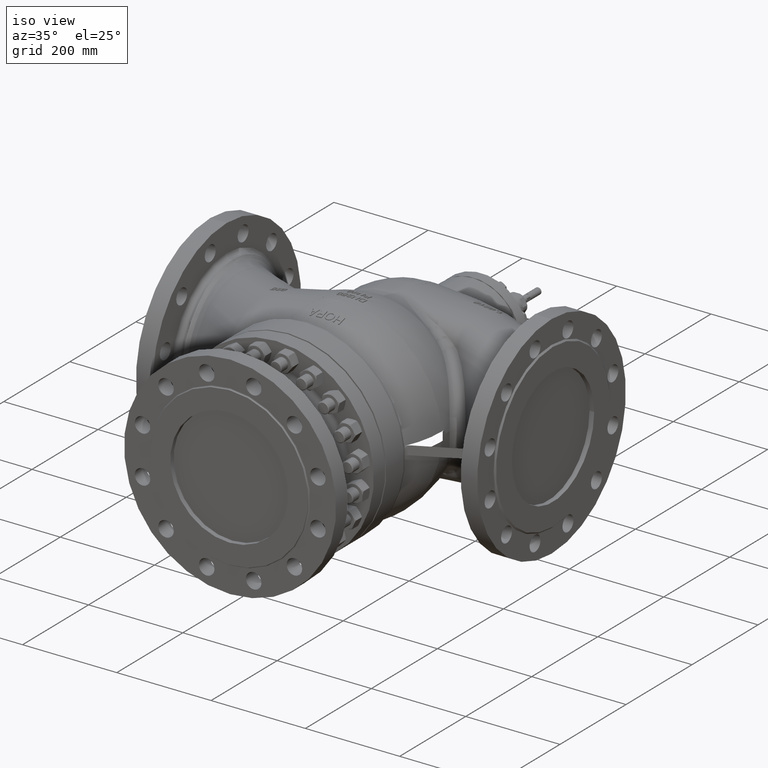
[diagram: clean part render]
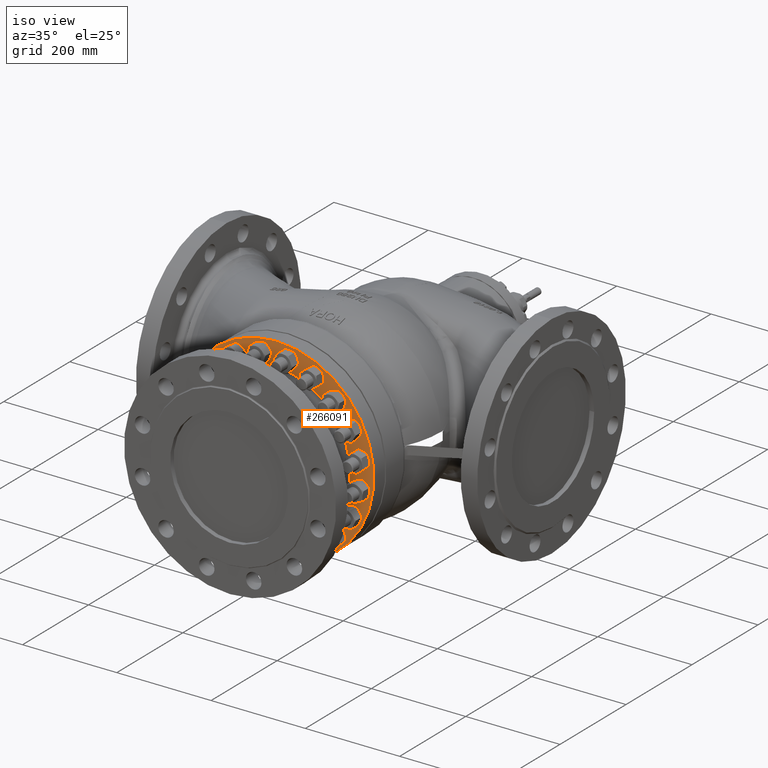
[diagram: same view with one face highlighted and labeled with its STEP entity id]
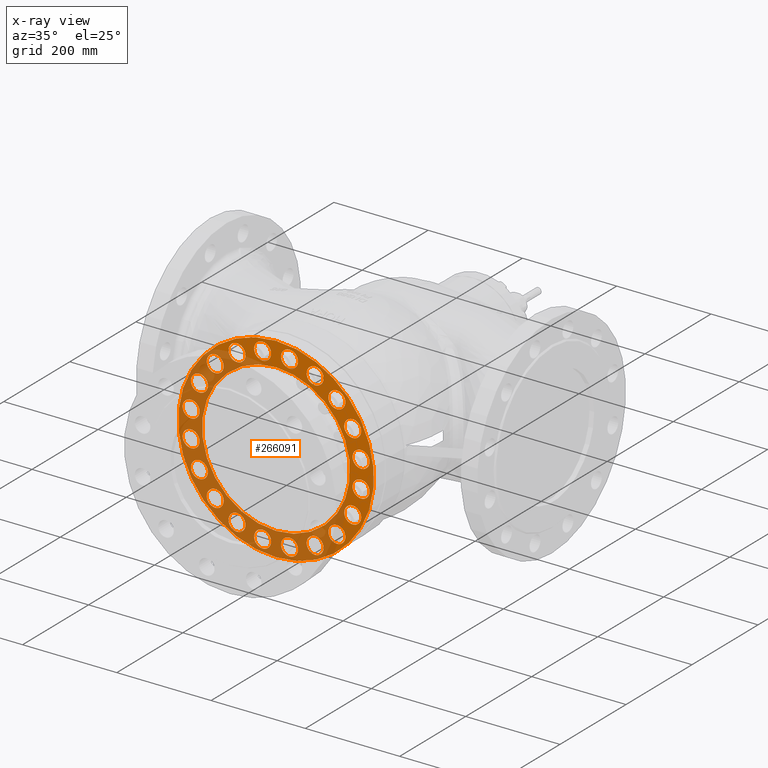
[diagram: x-ray of the same camera — body ghosted, the highlighted face saturated]
A machine part, iso view. The second image highlights one B-rep face of the part: STEP entity #266091.
The next image is the same camera in x-ray: the body ghosted, the highlighted face saturated — about 56% of this face is hidden behind the body in this view.
In plain terms, the highlighted planar face has unit normal (-0, 1, 0).
Its self-contained STEP definition (entity closure, byte-faithful):
#21 = AXIS2_PLACEMENT_3D ( 'NONE', #168339, #19236, #193304 ) ;
#265 = DIRECTION ( 'NONE',  ( -0.8090169943749479000, 0.0000000000000000000, -0.5877852522924722500 ) ) ;
#404 = VERTEX_POINT ( 'NONE', #27107 ) ;
#1240 = AXIS2_PLACEMENT_3D ( 'NONE', #97185, #271018, #122182 ) ;
#1415 = CARTESIAN_POINT ( 'NONE',  ( 162.6086906643756200, -317.4999999999999400, -82.85326620247029400 ) ) ;
#1872 = ORIENTED_EDGE ( 'NONE', *, *, #157137, .F. ) ;
#1932 = CARTESIAN_POINT ( 'NONE',  ( 187.5743817339765900, -317.4999999999999400, -44.99310810741218300 ) ) ;
#2351 = VERTEX_POINT ( 'NONE', #150052 ) ;
#2470 = CIRCLE ( 'NONE', #17694, 18.00000000000001400 ) ;
#2645 = ORIENTED_EDGE ( 'NONE', *, *, #273084, .F. ) ;
#2942 = CIRCLE ( 'NONE', #251323, 18.00000000000000700 ) ;
#3099 = DIRECTION ( 'NONE',  ( 5.867372061260820800E-018, -1.000000000000000000, 9.721403059632103400E-018 ) ) ;
#3875 = VERTEX_POINT ( 'NONE', #310347 ) ;
#4110 = VERTEX_POINT ( 'NONE', #48303 ) ;
#5314 = DIRECTION ( 'NONE',  ( -5.113884176491839500E-017, -1.000000000000000000, -4.372309466339380900E-018 ) ) ;
#5698 = EDGE_CURVE ( 'NONE', #48545, #160532, #200328, .T. ) ;
#5700 = CARTESIAN_POINT ( 'NONE',  ( 197.8597789718216700, -317.5000000000000000, 32.29170030455883700 ) ) ;
#5899 = CARTESIAN_POINT ( 'NONE',  ( 82.85326620246404200, -317.4999999999999400, -162.6086906643788000 ) ) ;
#6154 = ORIENTED_EDGE ( 'NONE', *, *, #168525, .F. ) ;
#6333 = CARTESIAN_POINT ( 'NONE',  ( -162.6086906643779500, -317.4999999999999400, -82.85326620246581800 ) ) ;
#7435 = VERTEX_POINT ( 'NONE', #64996 ) ;
#9859 = DIRECTION ( 'NONE',  ( -0.3090169943749634900, 0.0000000000000000000, 0.9510565162951483100 ) ) ;
#9875 = VERTEX_POINT ( 'NONE', #73856 ) ;
#10160 = VERTEX_POINT ( 'NONE', #146874 ) ;
#10363 = EDGE_CURVE ( 'NONE', #207148, #10160, #258248, .T. ) ;
#10822 = EDGE_CURVE ( 'NONE', #4110, #235699, #176668, .T. ) ;
#11230 = DIRECTION ( 'NONE',  ( -0.8090169943749459000, 0.0000000000000000000, -0.5877852522924754700 ) ) ;
#11264 = DIRECTION ( 'NONE',  ( 7.476202098894195500E-018, -1.000000000000000000, 3.209365951801019800E-017 ) ) ;
#11658 = AXIS2_PLACEMENT_3D ( 'NONE', #277097, #128264, #302053 ) ;
#11674 = CARTESIAN_POINT ( 'NONE',  ( 129.0469875665424700, -317.4999999999999400, -129.0469875665474100 ) ) ;
#11681 = DIRECTION ( 'NONE',  ( -6.395464697031396900E-017, -1.000000000000000000, 2.598640783230210700E-017 ) ) ;
#12093 = CARTESIAN_POINT ( 'NONE',  ( 190.8332566998767300, -317.5000000000000000, -13.98698397109621700 ) ) ;
#12806 = VERTEX_POINT ( 'NONE', #132971 ) ;
#13045 = CARTESIAN_POINT ( 'NONE',  ( 93.43340074373431000, -317.5000000000000000, 148.0463847656269500 ) ) ;
#13101 = DIRECTION ( 'NONE',  ( 0.3090169943749510600, 0.0000000000000000000, -0.9510565162951524200 ) ) ;
#13113 = ORIENTED_EDGE ( 'NONE', *, *, #296531, .F. ) ;
#13648 = VERTEX_POINT ( 'NONE', #290376 ) ;
#14315 = CIRCLE ( 'NONE', #96880, 18.00000000000001100 ) ;
#14484 = ORIENTED_EDGE ( 'NONE', *, *, #41926, .F. ) ;
#15018 = EDGE_CURVE ( 'NONE', #79493, #270666, #122309, .T. ) ;
#15502 = DIRECTION ( 'NONE',  ( 0.9510565162951513100, 0.0000000000000000000, 0.3090169943749539500 ) ) ;
#15768 = AXIS2_PLACEMENT_3D ( 'NONE', #321010, #172296, #23183 ) ;
#16010 = DIRECTION ( 'NONE',  ( -0.8090169943749479000, 0.0000000000000000000, -0.5877852522924722500 ) ) ;
#17384 = CARTESIAN_POINT ( 'NONE',  ( -82.85326620246866000, -317.4999999999999400, -162.6086906643764400 ) ) ;
#17408 = AXIS2_PLACEMENT_3D ( 'NONE', #131073, #304859, #156072 ) ;
#17659 = EDGE_LOOP ( 'NONE', ( #184745, #53311, #226403, #13113, #154828, #304978 ) ) ;
#17694 = AXIS2_PLACEMENT_3D ( 'NONE', #34799, #208827, #59874 ) ;
#17867 = DIRECTION ( 'NONE',  ( 0.3090169943749510600, 0.0000000000000000000, -0.9510565162951524200 ) ) ;
#17899 = CARTESIAN_POINT ( 'NONE',  ( 82.85326620246971200, -317.4999999999999400, 162.6086906643759800 ) ) ;
#17930 = EDGE_CURVE ( 'NONE', #7435, #73714, #168852, .T. ) ;
#18538 = DIRECTION ( 'NONE',  ( -5.857132781306289200E-017, -1.000000000000000000, 4.211971720645712200E-018 ) ) ;
#18594 = VERTEX_POINT ( 'NONE', #322443 ) ;
#18911 = CARTESIAN_POINT ( 'NONE',  ( -180.2531221586130000, -317.4999999999999400, -28.54928986984032200 ) ) ;
#19221 = VERTEX_POINT ( 'NONE', #109298 ) ;
#19236 = DIRECTION ( 'NONE',  ( -5.857132781306289200E-017, -1.000000000000000000, 4.211971720645712200E-018 ) ) ;
#19335 = VERTEX_POINT ( 'NONE', #283146 ) ;
#19524 = DIRECTION ( 'NONE',  ( -1.904518224690862600E-017, -1.000000000000000000, -1.184851156523335800E-017 ) ) ;
#19961 = VERTEX_POINT ( 'NONE', #121135 ) ;
#20291 = DIRECTION ( 'NONE',  ( -1.409371252597135800E-017, -1.000000000000000000, 5.700621382617957500E-017 ) ) ;
#20332 = CARTESIAN_POINT ( 'NONE',  ( -146.1660048598562900, -317.5000000000000000, 123.4846816677972500 ) ) ;
#20864 = VERTEX_POINT ( 'NONE', #126470 ) ;
#20919 = CARTESIAN_POINT ( 'NONE',  ( -180.2531221586130000, -317.4999999999999400, -28.54928986984032200 ) ) ;
#20986 = CARTESIAN_POINT ( 'NONE',  ( -28.54928986984599200, -317.4999999999999400, -180.2531221586120900 ) ) ;
#21174 = EDGE_LOOP ( 'NONE', ( #314098, #131421, #127692, #267692, #263960, #318453 ) ) ;
#21284 = CIRCLE ( 'NONE', #318122, 18.00000000000000400 ) ;
#21320 = VERTEX_POINT ( 'NONE', #229664 ) ;
#21530 = CIRCLE ( 'NONE', #15768, 18.00000000000000700 ) ;
#21589 = FACE_BOUND ( 'NONE', #320980, .T. ) ;
#22269 = VERTEX_POINT ( 'NONE', #316315 ) ;
#22795 = DIRECTION ( 'NONE',  ( -0.9510565162951534200, 0.0000000000000000000, -0.3090169943749480600 ) ) ;
#22919 = CIRCLE ( 'NONE', #209437, 18.00000000000000000 ) ;
#23032 = CIRCLE ( 'NONE', #310814, 18.00000000000000400 ) ;
#23068 = VERTEX_POINT ( 'NONE', #135720 ) ;
#23183 = DIRECTION ( 'NONE',  ( 0.5877852522924672500, 0.0000000000000000000, 0.8090169943749516700 ) ) ;
#23185 = CARTESIAN_POINT ( 'NONE',  ( -82.85326620246527800, -317.4999999999999400, 162.6086906643782300 ) ) ;
#24136 = CARTESIAN_POINT ( 'NONE',  ( 180.2531221586131400, -317.4999999999999400, 28.54928986983909700 ) ) ;
#24549 = EDGE_CURVE ( 'NONE', #160532, #4110, #39870, .T. ) ;
#24714 = ORIENTED_EDGE ( 'NONE', *, *, #171056, .F. ) ;
#24905 = ORIENTED_EDGE ( 'NONE', *, *, #225272, .F. ) ;
#25251 = DIRECTION ( 'NONE',  ( 3.060176581805196400E-018, -1.000000000000000000, 4.255456057793363800E-017 ) ) ;
#25332 = DIRECTION ( 'NONE',  ( -3.646596898434944500E-017, -1.000000000000000000, 5.861504386381286700E-017 ) ) ;
#25333 = CARTESIAN_POINT ( 'NONE',  ( 91.85326620246405600, -317.5000000000000000, -147.0202333962589000 ) ) ;
#25400 = ORIENTED_EDGE ( 'NONE', *, *, #67562, .F. ) ;
#25541 = CIRCLE ( 'NONE', #316838, 18.00000000000000000 ) ;
#25602 = AXIS2_PLACEMENT_3D ( 'NONE', #199770, #50765, #224744 ) ;
#26195 = VERTEX_POINT ( 'NONE', #86788 ) ;
#26416 = DIRECTION ( 'NONE',  ( 0.8090169943749466700, 0.0000000000000000000, 0.5877852522924741400 ) ) ;
#27107 = CARTESIAN_POINT ( 'NONE',  ( 132.7893980012621600, -317.5000000000000000, -111.4403307533389100 ) ) ;
#27262 = CIRCLE ( 'NONE', #234190, 18.00000000000000700 ) ;
#27423 = CIRCLE ( 'NONE', #167096, 18.00000000000000700 ) ;
#27718 = CARTESIAN_POINT ( 'NONE',  ( -162.6086906643762100, -317.4999999999999400, 82.85326620246924300 ) ) ;
#27793 = CARTESIAN_POINT ( 'NONE',  ( -28.54928986983969700, -317.4999999999999400, 180.2531221586130500 ) ) ;
#28078 = DIRECTION ( 'NONE',  ( -1.904518224690862600E-017, -1.000000000000000000, -1.184851156523335800E-017 ) ) ;
#28212 = ORIENTED_EDGE ( 'NONE', *, *, #5698, .F. ) ;
#28417 = CARTESIAN_POINT ( 'NONE',  ( -30.43080220866377400, -317.5000000000000000, -198.1545162752410600 ) ) ;
#28700 = AXIS2_PLACEMENT_3D ( 'NONE', #44410, #218403, #69472 ) ;
#29026 = CIRCLE ( 'NONE', #314999, 18.00000000000000400 ) ;
#29153 = CARTESIAN_POINT ( 'NONE',  ( -172.9318625832478600, -317.5000000000000000, 12.10547163227735500 ) ) ;
#29373 = FACE_BOUND ( 'NONE', #17659, .T. ) ;
#29481 = CARTESIAN_POINT ( 'NONE',  ( -28.54928986983969700, -317.4999999999999400, 180.2531221586130500 ) ) ;
#29611 = AXIS2_PLACEMENT_3D ( 'NONE', #44629, #218623, #69698 ) ;
#29844 = EDGE_CURVE ( 'NONE', #138134, #170910, #125122, .T. ) ;
#30247 = CARTESIAN_POINT ( 'NONE',  ( -178.1971479324979000, -317.4999999999999400, -73.85326620246596000 ) ) ;
#30268 = CARTESIAN_POINT ( 'NONE',  ( 180.2531221586121700, -317.4999999999999400, -28.54928986984536700 ) ) ;
#30822 = EDGE_CURVE ( 'NONE', #231166, #129020, #43333, .T. ) ;
#30905 = DIRECTION ( 'NONE',  ( -1.000000000000000000, 0.0000000000000000000, 0.0000000000000000000 ) ) ;
#31306 = CARTESIAN_POINT ( 'NONE',  ( 82.85326620246971200, -317.4999999999999400, 162.6086906643759800 ) ) ;
#31334 = DIRECTION ( 'NONE',  ( -1.233581138472395900E-014, 0.0000000000000000000, 1.000000000000000000 ) ) ;
#31865 = VERTEX_POINT ( 'NONE', #20332 ) ;
#31923 = DIRECTION ( 'NONE',  ( -4.372309466339223700E-018, -1.000000000000000000, 5.113884176491878400E-017 ) ) ;
#32066 = AXIS2_PLACEMENT_3D ( 'NONE', #279484, #130665, #304447 ) ;
#32225 = CARTESIAN_POINT ( 'NONE',  ( -180.2531221586130000, -317.4999999999999400, -28.54928986984032200 ) ) ;
#32365 = ORIENTED_EDGE ( 'NONE', *, *, #182522, .F. ) ;
#32735 = FACE_BOUND ( 'NONE', #162650, .T. ) ;
#32787 = DIRECTION ( 'NONE',  ( -0.0000000000000000000, -1.000000000000000000, -0.0000000000000000000 ) ) ;
#33157 = DIRECTION ( 'NONE',  ( -8.584281186985160900E-018, -1.000000000000000000, -7.432486048144400100E-018 ) ) ;
#33228 = EDGE_CURVE ( 'NONE', #296318, #19961, #284766, .T. ) ;
#34032 = EDGE_CURVE ( 'NONE', #3875, #196307, #63068, .T. ) ;
#34275 = EDGE_CURVE ( 'NONE', #136090, #242761, #179802, .T. ) ;
#34481 = CARTESIAN_POINT ( 'NONE',  ( -41.92589672843273300, -317.5000000000000000, 168.2087712441535200 ) ) ;
#34799 = CARTESIAN_POINT ( 'NONE',  ( -129.0469875665460200, -317.4999999999999400, -129.0469875665438900 ) ) ;
#34948 = AXIS2_PLACEMENT_3D ( 'NONE', #177182, #28078, #202146 ) ;
#35325 = ORIENTED_EDGE ( 'NONE', *, *, #242896, .F. ) ;
#35583 = DIRECTION ( 'NONE',  ( -5.551115123125800000E-017, -1.000000000000000000, 4.676653229857937000E-017 ) ) ;
#35892 = CARTESIAN_POINT ( 'NONE',  ( 28.54928986983840000, -317.4999999999999400, -180.2531221586132200 ) ) ;
#36565 = VERTEX_POINT ( 'NONE', #291989 ) ;
#36702 = DIRECTION ( 'NONE',  ( 0.9510565162951535300, 0.0000000000000000000, 0.3090169943749477800 ) ) ;
#37187 = AXIS2_PLACEMENT_3D ( 'NONE', #290439, #141667, #315387 ) ;
#37381 = AXIS2_PLACEMENT_3D ( 'NONE', #154371, #5314, #179406 ) ;
#37524 = VERTEX_POINT ( 'NONE', #171047 ) ;
#38424 = EDGE_CURVE ( 'NONE', #22269, #50882, #276701, .T. ) ;
#38486 = CARTESIAN_POINT ( 'NONE',  ( -117.0026366520867400, -317.5000000000000000, -115.6703807079506300 ) ) ;
#39199 = AXIS2_PLACEMENT_3D ( 'NONE', #17899, #191974, #42948 ) ;
#39219 = CARTESIAN_POINT ( 'NONE',  ( 162.6086906643785100, -317.4999999999999400, 82.85326620246461000 ) ) ;
#39659 = AXIS2_PLACEMENT_3D ( 'NONE', #20919, #194980, #45975 ) ;
#39704 = CARTESIAN_POINT ( 'NONE',  ( 146.1660048598553500, -317.5000000000000000, -123.4846816677983300 ) ) ;
#39779 = ORIENTED_EDGE ( 'NONE', *, *, #73020, .F. ) ;
#39837 = AXIS2_PLACEMENT_3D ( 'NONE', #20986, #195047, #46043 ) ;
#39870 = CIRCLE ( 'NONE', #312109, 18.00000000000000000 ) ;
#39900 = VERTEX_POINT ( 'NONE', #177202 ) ;
#40602 = FACE_BOUND ( 'NONE', #278012, .T. ) ;
#41259 = CARTESIAN_POINT ( 'NONE',  ( -111.9279702732307600, -317.5000000000000000, 134.6092934652956800 ) ) ;
#41592 = AXIS2_PLACEMENT_3D ( 'NONE', #313866, #165130, #16010 ) ;
#41643 = ORIENTED_EDGE ( 'NONE', *, *, #88950, .F. ) ;
#41740 = CARTESIAN_POINT ( 'NONE',  ( -160.7271783255583300, -317.5000000000000000, 64.95187208584033600 ) ) ;
#41750 = DIRECTION ( 'NONE',  ( -0.0000000000000000000, 1.000000000000000000, -0.0000000000000000000 ) ) ;
#41926 = EDGE_CURVE ( 'NONE', #193050, #190048, #27423, .T. ) ;
#42123 = CARTESIAN_POINT ( 'NONE',  ( -26.66777753102822100, -317.5000000000000000, -162.3517280419831600 ) ) ;
#42439 = DIRECTION ( 'NONE',  ( -0.5877852522924825700, 0.0000000000000000000, 0.8090169943749404600 ) ) ;
#42518 = AXIS2_PLACEMENT_3D ( 'NONE', #181874, #32787, #206823 ) ;
#42630 = AXIS2_PLACEMENT_3D ( 'NONE', #27718, #201791, #52790 ) ;
#42948 = DIRECTION ( 'NONE',  ( 0.5877852522924759100, 0.0000000000000000000, -0.8090169943749453400 ) ) ;
#42952 = VERTEX_POINT ( 'NONE', #196902 ) ;
#43079 = VERTEX_POINT ( 'NONE', #47901 ) ;
#43333 = CIRCLE ( 'NONE', #204158, 18.00000000000000700 ) ;
#43454 = DIRECTION ( 'NONE',  ( -3.035871729864110800E-017, -1.000000000000000000, -1.281580520539527800E-017 ) ) ;
#43595 = CARTESIAN_POINT ( 'NONE',  ( 129.0469875665424700, -317.4999999999999400, -129.0469875665474100 ) ) ;
#43917 = CIRCLE ( 'NONE', #17408, 18.00000000000000700 ) ;
#43941 = EDGE_CURVE ( 'NONE', #19335, #133338, #303483, .T. ) ;
#43959 = DIRECTION ( 'NONE',  ( 0.3090169943749386200, 0.0000000000000000000, 0.9510565162951564200 ) ) ;
#44130 = ORIENTED_EDGE ( 'NONE', *, *, #78616, .F. ) ;
#44267 = CARTESIAN_POINT ( 'NONE',  ( 28.54928986983840000, -317.4999999999999400, -180.2531221586132200 ) ) ;
#44410 = CARTESIAN_POINT ( 'NONE',  ( 82.85326620246971200, -317.4999999999999400, 162.6086906643759800 ) ) ;
#44629 = CARTESIAN_POINT ( 'NONE',  ( -7.618905506490136800E-015, -317.5000000000000000, 6.418706557980045500E-015 ) ) ;
#44716 = EDGE_CURVE ( 'NONE', #287589, #231166, #221878, .T. ) ;
#45710 = DIRECTION ( 'NONE',  ( 0.0000000000000000000, 0.0000000000000000000, 1.000000000000000000 ) ) ;
#45760 = ORIENTED_EDGE ( 'NONE', *, *, #215404, .F. ) ;
#45975 = DIRECTION ( 'NONE',  ( 0.3090169943749385700, 0.0000000000000000000, 0.9510565162951564200 ) ) ;
#46043 = DIRECTION ( 'NONE',  ( -0.8090169943749463400, 0.0000000000000000000, 0.5877852522924746900 ) ) ;
#46196 = CIRCLE ( 'NONE', #25602, 18.00000000000000400 ) ;
#46197 = CARTESIAN_POINT ( 'NONE',  ( 162.6086906643756200, -317.4999999999999400, -82.85326620247029400 ) ) ;
#47030 = EDGE_CURVE ( 'NONE', #204484, #144064, #124583, .T. ) ;
#47448 = AXIS2_PLACEMENT_3D ( 'NONE', #90314, #264208, #115332 ) ;
#47901 = CARTESIAN_POINT ( 'NONE',  ( 178.1971479324984100, -317.5000000000000000, 91.85326620246468100 ) ) ;
#48255 = DIRECTION ( 'NONE',  ( 1.000000000000000000, 0.0000000000000000000, 6.167905692361979400E-015 ) ) ;
#48258 = DIRECTION ( 'NONE',  ( -2.515243393261648200E-017, -1.000000000000000000, 5.958233750397482100E-017 ) ) ;
#48303 = CARTESIAN_POINT ( 'NONE',  ( 125.3045771318228000, -317.4999999999999400, -146.6536443797559200 ) ) ;
#48436 = FACE_BOUND ( 'NONE', #75006, .T. ) ;
#48545 = VERTEX_POINT ( 'NONE', #65495 ) ;
#49206 = DIRECTION ( 'NONE',  ( -0.3090169943749432900, 0.0000000000000000000, -0.9510565162951548600 ) ) ;
#49648 = AXIS2_PLACEMENT_3D ( 'NONE', #310953, #162190, #13101 ) ;
#49780 = ORIENTED_EDGE ( 'NONE', *, *, #75215, .F. ) ;
#50155 = VERTEX_POINT ( 'NONE', #84208 ) ;
#50364 = AXIS2_PLACEMENT_3D ( 'NONE', #85089, #258991, #110105 ) ;
#50765 = DIRECTION ( 'NONE',  ( -5.551115123125800000E-017, -1.000000000000000000, 4.676653229857937000E-017 ) ) ;
#50882 = VERTEX_POINT ( 'NONE', #93925 ) ;
#51040 = ORIENTED_EDGE ( 'NONE', *, *, #92070, .F. ) ;
#51139 = CIRCLE ( 'NONE', #267919, 18.00000000000000400 ) ;
#51296 = ORIENTED_EDGE ( 'NONE', *, *, #56177, .F. ) ;
#52158 = AXIS2_PLACEMENT_3D ( 'NONE', #87796, #261685, #112820 ) ;
#52790 = DIRECTION ( 'NONE',  ( 0.8090169943749424600, 0.0000000000000000000, 0.5877852522924799100 ) ) ;
#52861 = DIRECTION ( 'NONE',  ( 0.9510565162951554200, 0.0000000000000000000, -0.3090169943749417900 ) ) ;
#53007 = EDGE_LOOP ( 'NONE', ( #250083, #14484, #288368, #199808, #150788, #227157 ) ) ;
#53250 = VERTEX_POINT ( 'NONE', #234920 ) ;
#53311 = ORIENTED_EDGE ( 'NONE', *, *, #90056, .F. ) ;
#53512 = EDGE_LOOP ( 'NONE', ( #44130, #64100, #59997, #51296, #49780, #217970 ) ) ;
#53812 = CARTESIAN_POINT ( 'NONE',  ( -28.54928986983969700, -317.4999999999999400, 180.2531221586130500 ) ) ;
#53990 = AXIS2_PLACEMENT_3D ( 'NONE', #210457, #61514, #235445 ) ;
#54553 = DIRECTION ( 'NONE',  ( 0.9510565162951558600, 0.0000000000000000000, -0.3090169943749403500 ) ) ;
#54697 = EDGE_CURVE ( 'NONE', #218939, #192487, #194171, .T. ) ;
#54722 = AXIS2_PLACEMENT_3D ( 'NONE', #307709, #158935, #9859 ) ;
#55000 = CARTESIAN_POINT ( 'NONE',  ( -111.4403307533374800, -317.5000000000000000, -132.7893980012633800 ) ) ;
#55336 = DIRECTION ( 'NONE',  ( -0.5877852522924732500, 0.0000000000000000000, -0.8090169943749472300 ) ) ;
#55361 = CARTESIAN_POINT ( 'NONE',  ( 64.95187208584079000, -317.5000000000000000, 160.7271783255581300 ) ) ;
#55620 = CARTESIAN_POINT ( 'NONE',  ( 28.54928986984471700, -317.4999999999999400, 180.2531221586122900 ) ) ;
#56177 = EDGE_CURVE ( 'NONE', #217862, #23068, #295095, .T. ) ;
#56224 = EDGE_CURVE ( 'NONE', #270557, #182707, #96836, .T. ) ;
#56388 = DIRECTION ( 'NONE',  ( 0.5877852522924776900, 0.0000000000000000000, -0.8090169943749442300 ) ) ;
#56847 = ORIENTED_EDGE ( 'NONE', *, *, #225220, .F. ) ;
#57310 = DIRECTION ( 'NONE',  ( -0.3090169943749385700, 0.0000000000000000000, -0.9510565162951564200 ) ) ;
#57480 = CARTESIAN_POINT ( 'NONE',  ( 180.2531221586131400, -317.4999999999999400, 28.54928986983909700 ) ) ;
#58877 = DIRECTION ( 'NONE',  ( -3.646596898434944500E-017, -1.000000000000000000, 5.861504386381286700E-017 ) ) ;
#59176 = AXIS2_PLACEMENT_3D ( 'NONE', #132927, #306701, #157919 ) ;
#59628 = DIRECTION ( 'NONE',  ( -1.904518224690862600E-017, -1.000000000000000000, -1.184851156523335800E-017 ) ) ;
#59874 = DIRECTION ( 'NONE',  ( -0.3090169943749524500, 0.0000000000000000000, 0.9510565162951518700 ) ) ;
#59997 = ORIENTED_EDGE ( 'NONE', *, *, #135699, .F. ) ;
#60255 = AXIS2_PLACEMENT_3D ( 'NONE', #44267, #218260, #69324 ) ;
#60349 = DIRECTION ( 'NONE',  ( -6.395464697031396900E-017, -1.000000000000000000, 2.598640783230210700E-017 ) ) ;
#60364 = DIRECTION ( 'NONE',  ( -6.395464697031396900E-017, -1.000000000000000000, 2.598640783230210700E-017 ) ) ;
#60433 = CIRCLE ( 'NONE', #28700, 17.99999999999999300 ) ;
#60979 = DIRECTION ( 'NONE',  ( -0.9510565162951534200, 0.0000000000000000000, 0.3090169943749480600 ) ) ;
#61065 = CIRCLE ( 'NONE', #282506, 18.00000000000000400 ) ;
#61273 = AXIS2_PLACEMENT_3D ( 'NONE', #169392, #20291, #194360 ) ;
#61336 = DIRECTION ( 'NONE',  ( -6.137852329251874800E-017, -1.000000000000000000, 3.704512923894721900E-017 ) ) ;
#61514 = DIRECTION ( 'NONE',  ( -6.395464697031396900E-017, -1.000000000000000000, 2.598640783230210700E-017 ) ) ;
#62678 = AXIS2_PLACEMENT_3D ( 'NONE', #286402, #137605, #311359 ) ;
#62687 = CIRCLE ( 'NONE', #314848, 18.00000000000000400 ) ;
#63068 = CIRCLE ( 'NONE', #91766, 18.00000000000001400 ) ;
#63240 = EDGE_CURVE ( 'NONE', #82400, #53250, #197614, .T. ) ;
#63695 = VERTEX_POINT ( 'NONE', #103517 ) ;
#63821 = EDGE_CURVE ( 'NONE', #192487, #295569, #306279, .T. ) ;
#63845 = CARTESIAN_POINT ( 'NONE',  ( 82.85326620246971200, -317.4999999999999400, 162.6086906643759800 ) ) ;
#63964 = AXIS2_PLACEMENT_3D ( 'NONE', #289242, #140478, #314214 ) ;
#63965 = CARTESIAN_POINT ( 'NONE',  ( 91.85326620246405600, -317.5000000000000000, -178.1971479324987200 ) ) ;
#64039 = AXIS2_PLACEMENT_3D ( 'NONE', #232260, #83299, #257210 ) ;
#64062 = ORIENTED_EDGE ( 'NONE', *, *, #106657, .F. ) ;
#64100 = ORIENTED_EDGE ( 'NONE', *, *, #43941, .F. ) ;
#64151 = EDGE_CURVE ( 'NONE', #88956, #287589, #166467, .T. ) ;
#64262 = CARTESIAN_POINT ( 'NONE',  ( -91.85326620246519300, -317.5000000000000000, 147.0202333962582800 ) ) ;
#64305 = DIRECTION ( 'NONE',  ( 4.625929269271484500E-015, 0.0000000000000000000, -1.000000000000000000 ) ) ;
#64666 = CARTESIAN_POINT ( 'NONE',  ( 180.2531221586121700, -317.4999999999999400, -28.54928986984536700 ) ) ;
#64996 = CARTESIAN_POINT ( 'NONE',  ( -141.0913384810053200, -317.5000000000000000, -142.4235944251371700 ) ) ;
#65336 = CARTESIAN_POINT ( 'NONE',  ( 192.2974730730726100, -317.4999999999999400, 15.17268301124601800 ) ) ;
#65495 = CARTESIAN_POINT ( 'NONE',  ( 115.6703807079493600, -317.5000000000000000, -117.0026366520879900 ) ) ;
#65595 = CIRCLE ( 'NONE', #261072, 17.99999999999999600 ) ;
#66016 = CARTESIAN_POINT ( 'NONE',  ( -129.0469875665460200, -317.4999999999999400, -129.0469875665438900 ) ) ;
#66083 = CIRCLE ( 'NONE', #305025, 18.00000000000000700 ) ;
#66123 = EDGE_CURVE ( 'NONE', #238295, #199901, #275173, .T. ) ;
#66170 = CIRCLE ( 'NONE', #47448, 18.00000000000000400 ) ;
#66866 = DIRECTION ( 'NONE',  ( 7.476202098894195500E-018, -1.000000000000000000, 3.209365951801019800E-017 ) ) ;
#66924 = DIRECTION ( 'NONE',  ( -1.409371252597135800E-017, -1.000000000000000000, 5.700621382617957500E-017 ) ) ;
#67439 = VERTEX_POINT ( 'NONE', #161420 ) ;
#67562 = EDGE_CURVE ( 'NONE', #258495, #2351, #286695, .T. ) ;
#67574 = CARTESIAN_POINT ( 'NONE',  ( -73.85326620246536300, -317.4999999999999400, 178.1971479324981500 ) ) ;
#67591 = CARTESIAN_POINT ( 'NONE',  ( -162.3517280419834500, -317.5000000000000000, 26.66777753102653400 ) ) ;
#68454 = DIRECTION ( 'NONE',  ( -0.0000000000000000000, -1.000000000000000000, -0.0000000000000000000 ) ) ;
#68591 = EDGE_CURVE ( 'NONE', #270666, #185926, #313812, .T. ) ;
#68975 = CARTESIAN_POINT ( 'NONE',  ( 82.85326620246404200, -317.4999999999999400, -162.6086906643788000 ) ) ;
#69324 = DIRECTION ( 'NONE',  ( 0.9510565162951534200, 0.0000000000000000000, -0.3090169943749480600 ) ) ;
#69393 = CARTESIAN_POINT ( 'NONE',  ( -90.17452577783286900, -317.5000000000000000, -179.0525089019433800 ) ) ;
#69437 = AXIS2_PLACEMENT_3D ( 'NONE', #197259, #48258, #222226 ) ;
#69472 = DIRECTION ( 'NONE',  ( 0.5877852522924776900, 0.0000000000000000000, -0.8090169943749442300 ) ) ;
#69698 = DIRECTION ( 'NONE',  ( 0.0000000000000000000, 0.0000000000000000000, 1.000000000000000000 ) ) ;
#71256 = DIRECTION ( 'NONE',  ( -0.8090169943749466700, 0.0000000000000000000, -0.5877852522924741400 ) ) ;
#71675 = VERTEX_POINT ( 'NONE', #63965 ) ;
#71815 = ORIENTED_EDGE ( 'NONE', *, *, #304746, .F. ) ;
#72089 = CARTESIAN_POINT ( 'NONE',  ( -7.618905506490136800E-015, -317.5000000000000000, 157.0000000000000300 ) ) ;
#72495 = CARTESIAN_POINT ( 'NONE',  ( 82.85326620246971200, -317.4999999999999400, 162.6086906643759800 ) ) ;
#72882 = CARTESIAN_POINT ( 'NONE',  ( -162.6086906643779500, -317.4999999999999400, -82.85326620246581800 ) ) ;
#73020 = EDGE_CURVE ( 'NONE', #10160, #207148, #270806, .T. ) ;
#73711 = EDGE_CURVE ( 'NONE', #246369, #50155, #189201, .T. ) ;
#73714 = VERTEX_POINT ( 'NONE', #318808 ) ;
#73838 = CIRCLE ( 'NONE', #246208, 18.00000000000000000 ) ;
#73856 = CARTESIAN_POINT ( 'NONE',  ( 123.4846816677977900, -317.5000000000000000, 146.1660048598557500 ) ) ;
#74017 = EDGE_LOOP ( 'NONE', ( #195777, #35325, #133344, #156199, #171024, #139574 ) ) ;
#74219 = AXIS2_PLACEMENT_3D ( 'NONE', #295300, #146517, #320267 ) ;
#74222 = EDGE_CURVE ( 'NONE', #42952, #176067, #305661, .T. ) ;
#74307 = CARTESIAN_POINT ( 'NONE',  ( 100.8532662024641400, -317.5000000000000000, -162.6086906643788000 ) ) ;
#74323 = CARTESIAN_POINT ( 'NONE',  ( 28.54928986983840000, -317.4999999999999400, -180.2531221586132200 ) ) ;
#74339 = VERTEX_POINT ( 'NONE', #199337 ) ;
#74672 = DIRECTION ( 'NONE',  ( -1.409371252597135800E-017, -1.000000000000000000, 5.700621382617957500E-017 ) ) ;
#75006 = EDGE_LOOP ( 'NONE', ( #234478, #306072, #251247, #270856, #284625, #241925 ) ) ;
#75215 = EDGE_CURVE ( 'NONE', #303165, #217862, #239694, .T. ) ;
#75456 = AXIS2_PLACEMENT_3D ( 'NONE', #280889, #132090, #305861 ) ;
#75616 = AXIS2_PLACEMENT_3D ( 'NONE', #258090, #109202, #283040 ) ;
#75724 = EDGE_CURVE ( 'NONE', #142608, #218939, #142449, .T. ) ;
#75742 = DIRECTION ( 'NONE',  ( 5.867372061260820800E-018, -1.000000000000000000, 9.721403059632103400E-018 ) ) ;
#76687 = CIRCLE ( 'NONE', #178277, 18.00000000000001100 ) ;
#78087 = VERTEX_POINT ( 'NONE', #160837 ) ;
#78616 = EDGE_CURVE ( 'NONE', #133338, #310963, #87758, .T. ) ;
#78670 = EDGE_CURVE ( 'NONE', #81328, #142608, #220058, .T. ) ;
#78840 = DIRECTION ( 'NONE',  ( 0.9510565162951548600, 0.0000000000000000000, -0.3090169943749433400 ) ) ;
#79493 = VERTEX_POINT ( 'NONE', #261448 ) ;
#79936 = DIRECTION ( 'NONE',  ( -4.141743870528622600E-017, -1.000000000000000000, -1.023968152760010000E-017 ) ) ;
#79991 = FACE_BOUND ( 'NONE', #249500, .T. ) ;
#80175 = ORIENTED_EDGE ( 'NONE', *, *, #293985, .F. ) ;
#80304 = CARTESIAN_POINT ( 'NONE',  ( 162.6464653454046400, -317.5000000000000000, 24.80687943511935600 ) ) ;
#80389 = CARTESIAN_POINT ( 'NONE',  ( 28.54928986983840000, -317.4999999999999400, -180.2531221586132200 ) ) ;
#80626 = DIRECTION ( 'NONE',  ( 0.8090169943749506700, 0.0000000000000000000, -0.5877852522924688100 ) ) ;
#80694 = CARTESIAN_POINT ( 'NONE',  ( -162.6086906643777500, -317.5000000000000000, -100.8532662024659200 ) ) ;
#80985 = DIRECTION ( 'NONE',  ( -3.646596898434944500E-017, -1.000000000000000000, 5.861504386381286700E-017 ) ) ;
#81328 = VERTEX_POINT ( 'NONE', #203654 ) ;
#81866 = ORIENTED_EDGE ( 'NONE', *, *, #188039, .F. ) ;
#82400 = VERTEX_POINT ( 'NONE', #322780 ) ;
#82472 = DIRECTION ( 'NONE',  ( -0.3090169943749464500, 0.0000000000000000000, -0.9510565162951538600 ) ) ;
#83238 = CARTESIAN_POINT ( 'NONE',  ( -28.54928986983969700, -317.4999999999999400, 180.2531221586130500 ) ) ;
#83299 = DIRECTION ( 'NONE',  ( -5.857132781306289200E-017, -1.000000000000000000, 4.211971720645712200E-018 ) ) ;
#83440 = EDGE_CURVE ( 'NONE', #122829, #238295, #250897, .T. ) ;
#83472 = EDGE_LOOP ( 'NONE', ( #282315, #56847, #305064, #182605, #310968, #193556 ) ) ;
#83771 = EDGE_CURVE ( 'NONE', #71675, #176132, #29026, .T. ) ;
#84208 = CARTESIAN_POINT ( 'NONE',  ( -44.99310810741283000, -317.4999999999999400, -187.5743817339764500 ) ) ;
#84230 = EDGE_CURVE ( 'NONE', #43079, #228309, #238904, .T. ) ;
#84275 = DIRECTION ( 'NONE',  ( -5.551115123125800000E-017, -1.000000000000000000, 4.676653229857937000E-017 ) ) ;
#84641 = CARTESIAN_POINT ( 'NONE',  ( -132.7893980012630100, -317.5000000000000000, 111.4403307533379500 ) ) ;
#84678 = CARTESIAN_POINT ( 'NONE',  ( -180.2531221586124000, -317.4999999999999400, 28.54928986984412000 ) ) ;
#84868 = CIRCLE ( 'NONE', #319387, 18.00000000000000400 ) ;
#85054 = CIRCLE ( 'NONE', #253221, 18.00000000000001400 ) ;
#85089 = CARTESIAN_POINT ( 'NONE',  ( -28.54928986983969700, -317.4999999999999400, 180.2531221586130500 ) ) ;
#85630 = ORIENTED_EDGE ( 'NONE', *, *, #322369, .F. ) ;
#85751 = EDGE_CURVE ( 'NONE', #216794, #193050, #118223, .T. ) ;
#86004 = CARTESIAN_POINT ( 'NONE',  ( 28.54928986984471700, -317.4999999999999400, 180.2531221586122900 ) ) ;
#86573 = AXIS2_PLACEMENT_3D ( 'NONE', #72882, #246806, #97895 ) ;
#86788 = CARTESIAN_POINT ( 'NONE',  ( -168.2087712441534400, -317.5000000000000000, -41.92589672843331500 ) ) ;
#87157 = CARTESIAN_POINT ( 'NONE',  ( 180.2531221586131400, -317.4999999999999400, 28.54928986983909700 ) ) ;
#87283 = VERTEX_POINT ( 'NONE', #156839 ) ;
#87363 = ORIENTED_EDGE ( 'NONE', *, *, #265705, .F. ) ;
#87758 = CIRCLE ( 'NONE', #227548, 18.00000000000000000 ) ;
#87791 = FACE_BOUND ( 'NONE', #211255, .T. ) ;
#87796 = CARTESIAN_POINT ( 'NONE',  ( -162.6086906643779500, -317.4999999999999400, -82.85326620246581800 ) ) ;
#87950 = EDGE_LOOP ( 'NONE', ( #141760, #269829, #24905, #32365, #196316, #118321 ) ) ;
#88461 = ORIENTED_EDGE ( 'NONE', *, *, #215156, .F. ) ;
#88826 = DIRECTION ( 'NONE',  ( 0.5877852522924776900, 0.0000000000000000000, -0.8090169943749442300 ) ) ;
#88950 = EDGE_CURVE ( 'NONE', #37524, #121760, #188102, .T. ) ;
#88956 = VERTEX_POINT ( 'NONE', #291407 ) ;
#89533 = CARTESIAN_POINT ( 'NONE',  ( 28.54928986983840000, -317.4999999999999400, -180.2531221586132200 ) ) ;
#89648 = DIRECTION ( 'NONE',  ( -0.5877852522924704700, 0.0000000000000000000, -0.8090169943749492300 ) ) ;
#89824 = AXIS2_PLACEMENT_3D ( 'NONE', #87157, #261044, #112186 ) ;
#90056 = EDGE_CURVE ( 'NONE', #126862, #273397, #281203, .T. ) ;
#90314 = CARTESIAN_POINT ( 'NONE',  ( 82.85326620246404200, -317.4999999999999400, -162.6086906643788000 ) ) ;
#90444 = CIRCLE ( 'NONE', #156397, 18.00000000000000700 ) ;
#90951 = ORIENTED_EDGE ( 'NONE', *, *, #296972, .F. ) ;
#91003 = DIRECTION ( 'NONE',  ( -0.3090169943749556100, 0.0000000000000000000, 0.9510565162951508700 ) ) ;
#91244 = ORIENTED_EDGE ( 'NONE', *, *, #212674, .F. ) ;
#91766 = AXIS2_PLACEMENT_3D ( 'NONE', #168620, #19524, #193586 ) ;
#91798 = CARTESIAN_POINT ( 'NONE',  ( 100.7546603190986300, -317.4999999999999400, 164.4902030031938100 ) ) ;
#91873 = ORIENTED_EDGE ( 'NONE', *, *, #293327, .F. ) ;
#92070 = EDGE_CURVE ( 'NONE', #78087, #12806, #43917, .T. ) ;
#92209 = AXIS2_PLACEMENT_3D ( 'NONE', #139691, #313437, #164686 ) ;
#92931 = CIRCLE ( 'NONE', #203275, 18.00000000000000400 ) ;
#93186 = CIRCLE ( 'NONE', #123367, 18.00000000000000400 ) ;
#93816 = EDGE_CURVE ( 'NONE', #196423, #404, #277192, .T. ) ;
#93925 = CARTESIAN_POINT ( 'NONE',  ( 162.6086906643785700, -317.5000000000000000, 64.85326620246462400 ) ) ;
#93975 = DIRECTION ( 'NONE',  ( -1.000000000000000000, 0.0000000000000000000, 0.0000000000000000000 ) ) ;
#94080 = VERTEX_POINT ( 'NONE', #161839 ) ;
#94700 = EDGE_CURVE ( 'NONE', #2351, #67439, #246099, .T. ) ;
#95195 = EDGE_CURVE ( 'NONE', #157346, #9875, #179996, .T. ) ;
#95647 = FACE_OUTER_BOUND ( 'NONE', #141674, .T. ) ;
#95827 = ORIENTED_EDGE ( 'NONE', *, *, #150465, .F. ) ;
#95829 = ORIENTED_EDGE ( 'NONE', *, *, #235663, .F. ) ;
#96040 = AXIS2_PLACEMENT_3D ( 'NONE', #18911, #192981, #43959 ) ;
#96691 = CARTESIAN_POINT ( 'NONE',  ( -7.618905506490136800E-015, -317.5000000000000000, 6.418706557980045500E-015 ) ) ;
#96836 = CIRCLE ( 'NONE', #123672, 18.00000000000001400 ) ;
#96880 = AXIS2_PLACEMENT_3D ( 'NONE', #228895, #79936, #253853 ) ;
#97129 = VERTEX_POINT ( 'NONE', #38486 ) ;
#97185 = CARTESIAN_POINT ( 'NONE',  ( -162.6086906643762100, -317.4999999999999400, 82.85326620246924300 ) ) ;
#97516 = DIRECTION ( 'NONE',  ( 0.5877852522924763600, 0.0000000000000000000, -0.8090169943749450100 ) ) ;
#97557 = DIRECTION ( 'NONE',  ( 3.060176581805196400E-018, -1.000000000000000000, 4.255456057793363800E-017 ) ) ;
#97575 = ORIENTED_EDGE ( 'NONE', *, *, #74222, .F. ) ;
#97841 = DIRECTION ( 'NONE',  ( -0.0000000000000000000, -1.000000000000000000, -0.0000000000000000000 ) ) ;
#97895 = DIRECTION ( 'NONE',  ( 1.079383496163346400E-014, 0.0000000000000000000, -1.000000000000000000 ) ) ;
#98475 = EDGE_LOOP ( 'NONE', ( #130970, #276501, #224520, #232276, #256838, #250025 ) ) ;
#99027 = FACE_BOUND ( 'NONE', #98475, .T. ) ;
#99144 = DIRECTION ( 'NONE',  ( -5.551115123125800000E-017, -1.000000000000000000, 4.676653229857937000E-017 ) ) ;
#99337 = DIRECTION ( 'NONE',  ( -0.9510565162951528700, 0.0000000000000000000, 0.3090169943749495600 ) ) ;
#100058 = CARTESIAN_POINT ( 'NONE',  ( -73.85326620246513600, -317.5000000000000000, 147.0202333962583900 ) ) ;
#100108 = CIRCLE ( 'NONE', #317609, 18.00000000000000700 ) ;
#100240 = AXIS2_PLACEMENT_3D ( 'NONE', #215861, #66924, #240854 ) ;
#101125 = CIRCLE ( 'NONE', #214160, 18.00000000000000400 ) ;
#102162 = CARTESIAN_POINT ( 'NONE',  ( -198.1545162752413500, -317.5000000000000000, 30.43080220866171700 ) ) ;
#103517 = CARTESIAN_POINT ( 'NONE',  ( -146.6536443797545800, -317.4999999999999400, -125.3045771318244200 ) ) ;
#103632 = CIRCLE ( 'NONE', #89824, 18.00000000000000400 ) ;
#104351 = EDGE_CURVE ( 'NONE', #296413, #187910, #167893, .T. ) ;
#105396 = CARTESIAN_POINT ( 'NONE',  ( 162.3517280419832200, -317.5000000000000000, -26.66777753102765700 ) ) ;
#105399 = DIRECTION ( 'NONE',  ( -0.9510565162951544200, 0.0000000000000000000, 0.3090169943749449000 ) ) ;
#105526 = ORIENTED_EDGE ( 'NONE', *, *, #166330, .F. ) ;
#106213 = ORIENTED_EDGE ( 'NONE', *, *, #298445, .F. ) ;
#106657 = EDGE_CURVE ( 'NONE', #238810, #13648, #187193, .T. ) ;
#106934 = AXIS2_PLACEMENT_3D ( 'NONE', #89533, #263434, #114559 ) ;
#107004 = ORIENTED_EDGE ( 'NONE', *, *, #207927, .F. ) ;
#107818 = CARTESIAN_POINT ( 'NONE',  ( 180.2531221586131400, -317.4999999999999400, 28.54928986983909700 ) ) ;
#107835 = CARTESIAN_POINT ( 'NONE',  ( -125.3045771318239500, -317.4999999999999400, 146.6536443797550100 ) ) ;
#108274 = DIRECTION ( 'NONE',  ( -0.9510565162951554200, 0.0000000000000000000, 0.3090169943749419000 ) ) ;
#108778 = CIRCLE ( 'NONE', #115662, 18.00000000000000400 ) ;
#109202 = DIRECTION ( 'NONE',  ( -4.372309466339223700E-018, -1.000000000000000000, 5.113884176491878400E-017 ) ) ;
#109298 = CARTESIAN_POINT ( 'NONE',  ( 13.98698397109552600, -317.5000000000000000, 190.8332566998767800 ) ) ;
#109644 = ORIENTED_EDGE ( 'NONE', *, *, #148096, .F. ) ;
#109689 = DIRECTION ( 'NONE',  ( 0.5877852522924672500, 0.0000000000000000000, 0.8090169943749516700 ) ) ;
#110105 = DIRECTION ( 'NONE',  ( 0.9510565162951544200, 0.0000000000000000000, -0.3090169943749450100 ) ) ;
#110219 = VERTEX_POINT ( 'NONE', #112091 ) ;
#110671 = AXIS2_PLACEMENT_3D ( 'NONE', #133802, #307569, #158792 ) ;
#111026 = DIRECTION ( 'NONE',  ( 0.8090169943749506700, 0.0000000000000000000, -0.5877852522924688100 ) ) ;
#111360 = CARTESIAN_POINT ( 'NONE',  ( -162.6086906643779500, -317.4999999999999400, -82.85326620246581800 ) ) ;
#111631 = VERTEX_POINT ( 'NONE', #222800 ) ;
#111789 = EDGE_CURVE ( 'NONE', #132645, #311569, #51139, .T. ) ;
#111846 = CARTESIAN_POINT ( 'NONE',  ( -180.2531221586124000, -317.4999999999999400, 28.54928986984412000 ) ) ;
#112091 = CARTESIAN_POINT ( 'NONE',  ( -75.53200662710446500, -317.5000000000000000, -146.1648724268095200 ) ) ;
#112186 = DIRECTION ( 'NONE',  ( -0.3090169943749464500, 0.0000000000000000000, -0.9510565162951538600 ) ) ;
#112466 = CARTESIAN_POINT ( 'NONE',  ( 129.0469875665469600, -317.4999999999999400, 129.0469875665429200 ) ) ;
#112782 = CARTESIAN_POINT ( 'NONE',  ( 162.6086906643785100, -317.4999999999999400, 82.85326620246461000 ) ) ;
#112820 = DIRECTION ( 'NONE',  ( -9.251858538542969100E-015, 0.0000000000000000000, 1.000000000000000000 ) ) ;
#114241 = VERTEX_POINT ( 'NONE', #55000 ) ;
#114559 = DIRECTION ( 'NONE',  ( -0.9510565162951534200, 0.0000000000000000000, 0.3090169943749480600 ) ) ;
#115133 = EDGE_LOOP ( 'NONE', ( #276550, #269599 ) ) ;
#115258 = CARTESIAN_POINT ( 'NONE',  ( -129.0469875665434900, -317.4999999999999400, 129.0469875665464800 ) ) ;
#115332 = DIRECTION ( 'NONE',  ( 1.000000000000000000, 0.0000000000000000000, 0.0000000000000000000 ) ) ;
#115662 = AXIS2_PLACEMENT_3D ( 'NONE', #181013, #31923, #205970 ) ;
#116012 = CIRCLE ( 'NONE', #224224, 18.00000000000000400 ) ;
#116774 = VERTEX_POINT ( 'NONE', #100058 ) ;
#117524 = CARTESIAN_POINT ( 'NONE',  ( 11.43027257652563800, -317.5000000000000000, -174.6908162598641600 ) ) ;
#117533 = DIRECTION ( 'NONE',  ( -6.298735333015196600E-017, -1.000000000000000000, 1.467287278056912900E-017 ) ) ;
#118223 = CIRCLE ( 'NONE', #69437, 17.99999999999999300 ) ;
#118321 = ORIENTED_EDGE ( 'NONE', *, *, #220534, .F. ) ;
#119844 = AXIS2_PLACEMENT_3D ( 'NONE', #55620, #229585, #80626 ) ;
#121055 = DIRECTION ( 'NONE',  ( -3.035871729864110800E-017, -1.000000000000000000, -1.281580520539527800E-017 ) ) ;
#121135 = CARTESIAN_POINT ( 'NONE',  ( -146.1648724268093500, -317.5000000000000000, 75.53200662710499100 ) ) ;
#121695 = DIRECTION ( 'NONE',  ( 0.0000000000000000000, 0.0000000000000000000, 1.000000000000000000 ) ) ;
#121760 = VERTEX_POINT ( 'NONE', #236018 ) ;
#121780 = CARTESIAN_POINT ( 'NONE',  ( -164.4902030031941300, -317.4999999999999400, 100.7546603190981600 ) ) ;
#121881 = DIRECTION ( 'NONE',  ( -0.9510565162951528700, 0.0000000000000000000, -0.3090169943749493900 ) ) ;
#122050 = EDGE_CURVE ( 'NONE', #176132, #241847, #66170, .T. ) ;
#122053 = VERTEX_POINT ( 'NONE', #65336 ) ;
#122182 = DIRECTION ( 'NONE',  ( -0.8090169943749424600, 0.0000000000000000000, -0.5877852522924799100 ) ) ;
#122309 = CIRCLE ( 'NONE', #282627, 18.00000000000000400 ) ;
#122421 = CIRCLE ( 'NONE', #63964, 18.00000000000001400 ) ;
#122615 = DIRECTION ( 'NONE',  ( -3.035871729864110800E-017, -1.000000000000000000, -1.281580520539527800E-017 ) ) ;
#122618 = CARTESIAN_POINT ( 'NONE',  ( 162.6086906643785100, -317.4999999999999400, 82.85326620246461000 ) ) ;
#122779 = ORIENTED_EDGE ( 'NONE', *, *, #183977, .F. ) ;
#122829 = VERTEX_POINT ( 'NONE', #121780 ) ;
#122909 = VERTEX_POINT ( 'NONE', #271693 ) ;
#122950 = CARTESIAN_POINT ( 'NONE',  ( -129.0469875665460200, -317.4999999999999400, -129.0469875665438900 ) ) ;
#122957 = EDGE_CURVE ( 'NONE', #87283, #81328, #101125, .T. ) ;
#123367 = AXIS2_PLACEMENT_3D ( 'NONE', #112782, #286617, #137819 ) ;
#123650 = CIRCLE ( 'NONE', #59176, 18.00000000000000700 ) ;
#123672 = AXIS2_PLACEMENT_3D ( 'NONE', #313364, #164614, #15502 ) ;
#123905 = CARTESIAN_POINT ( 'NONE',  ( -28.54928986983969700, -317.4999999999999400, 180.2531221586130500 ) ) ;
#123997 = DIRECTION ( 'NONE',  ( -0.0000000000000000000, 1.000000000000000000, -0.0000000000000000000 ) ) ;
#124122 = CIRCLE ( 'NONE', #86573, 18.00000000000000400 ) ;
#124270 = CARTESIAN_POINT ( 'NONE',  ( -82.85326620246866000, -317.4999999999999400, -162.6086906643764400 ) ) ;
#124440 = CIRCLE ( 'NONE', #321719, 18.00000000000000400 ) ;
#124583 = CIRCLE ( 'NONE', #287846, 18.00000000000000700 ) ;
#124941 = CARTESIAN_POINT ( 'NONE',  ( 172.9318625832477500, -317.5000000000000000, -12.10547163227855300 ) ) ;
#125122 = CIRCLE ( 'NONE', #37381, 18.00000000000000400 ) ;
#125474 = CARTESIAN_POINT ( 'NONE',  ( 142.4235944251356300, -317.5000000000000000, -141.0913384810068900 ) ) ;
#126470 = CARTESIAN_POINT ( 'NONE',  ( -134.6092934652952800, -317.5000000000000000, -111.9279702732312100 ) ) ;
#126862 = VERTEX_POINT ( 'NONE', #247844 ) ;
#126928 = CIRCLE ( 'NONE', #280599, 18.00000000000000700 ) ;
#127182 = EDGE_CURVE ( 'NONE', #246482, #246369, #287570, .T. ) ;
#127506 = VERTEX_POINT ( 'NONE', #29153 ) ;
#127559 = VERTEX_POINT ( 'NONE', #80304 ) ;
#127692 = ORIENTED_EDGE ( 'NONE', *, *, #78670, .F. ) ;
#128226 = AXIS2_PLACEMENT_3D ( 'NONE', #291233, #142477, #316186 ) ;
#128264 = DIRECTION ( 'NONE',  ( 5.867372061260820800E-018, -1.000000000000000000, 9.721403059632103400E-018 ) ) ;
#129020 = VERTEX_POINT ( 'NONE', #300554 ) ;
#129865 = DIRECTION ( 'NONE',  ( -3.646596898434944500E-017, -1.000000000000000000, 5.861504386381286700E-017 ) ) ;
#130456 = CARTESIAN_POINT ( 'NONE',  ( -142.4235944251367100, -317.5000000000000000, 141.0913384810058300 ) ) ;
#130665 = DIRECTION ( 'NONE',  ( -6.298735333015196600E-017, -1.000000000000000000, 1.467287278056912900E-017 ) ) ;
#130970 = ORIENTED_EDGE ( 'NONE', *, *, #252366, .F. ) ;
#131026 = EDGE_LOOP ( 'NONE', ( #266187, #157913, #105526, #312835, #266452, #281071 ) ) ;
#131073 = CARTESIAN_POINT ( 'NONE',  ( -82.85326620246866000, -317.4999999999999400, -162.6086906643764400 ) ) ;
#131210 = CARTESIAN_POINT ( 'NONE',  ( 90.17452577783403500, -317.5000000000000000, 179.0525089019428400 ) ) ;
#131421 = ORIENTED_EDGE ( 'NONE', *, *, #75724, .F. ) ;
#132090 = DIRECTION ( 'NONE',  ( -6.137852329251874800E-017, -1.000000000000000000, 3.704512923894721900E-017 ) ) ;
#132645 = VERTEX_POINT ( 'NONE', #67574 ) ;
#132844 = DIRECTION ( 'NONE',  ( -0.3090169943749449000, 0.0000000000000000000, -0.9510565162951544200 ) ) ;
#132886 = DIRECTION ( 'NONE',  ( 8.443495739056126400E-018, -1.000000000000000000, 2.078012446627721400E-017 ) ) ;
#132927 = CARTESIAN_POINT ( 'NONE',  ( -180.2531221586124000, -317.4999999999999400, 28.54928986984412000 ) ) ;
#132939 = CIRCLE ( 'NONE', #29611, 157.0000000000000300 ) ;
#132971 = CARTESIAN_POINT ( 'NONE',  ( -64.95187208583976700, -317.5000000000000000, -160.7271783255585000 ) ) ;
#133338 = VERTEX_POINT ( 'NONE', #271784 ) ;
#133344 = ORIENTED_EDGE ( 'NONE', *, *, #122050, .F. ) ;
#133472 = AXIS2_PLACEMENT_3D ( 'NONE', #246466, #97557, #271406 ) ;
#133686 = CIRCLE ( 'NONE', #37187, 17.99999999999999600 ) ;
#133802 = CARTESIAN_POINT ( 'NONE',  ( -129.0469875665434900, -317.4999999999999400, 129.0469875665464800 ) ) ;
#134286 = EDGE_CURVE ( 'NONE', #146075, #205520, #182244, .T. ) ;
#134842 = DIRECTION ( 'NONE',  ( -1.904518224690862600E-017, -1.000000000000000000, -1.184851156523335800E-017 ) ) ;
#135699 = EDGE_CURVE ( 'NONE', #23068, #19335, #283173, .T. ) ;
#135720 = CARTESIAN_POINT ( 'NONE',  ( 45.66830716315126200, -317.5000000000000000, -185.8154280573623100 ) ) ;
#136090 = VERTEX_POINT ( 'NONE', #151813 ) ;
#136391 = DIRECTION ( 'NONE',  ( -7.709882115452474200E-015, 0.0000000000000000000, 1.000000000000000000 ) ) ;
#136742 = ORIENTED_EDGE ( 'NONE', *, *, #63240, .F. ) ;
#136781 = CARTESIAN_POINT ( 'NONE',  ( 73.85326620246401300, -317.4999999999999400, -178.1971479324986900 ) ) ;
#136875 = DIRECTION ( 'NONE',  ( 0.5877852522924654800, 0.0000000000000000000, 0.8090169943749530000 ) ) ;
#136894 = ORIENTED_EDGE ( 'NONE', *, *, #285602, .F. ) ;
#137500 = DIRECTION ( 'NONE',  ( 0.3090169943749464000, 0.0000000000000000000, -0.9510565162951538600 ) ) ;
#137605 = DIRECTION ( 'NONE',  ( -4.372309466339223700E-018, -1.000000000000000000, 5.113884176491878400E-017 ) ) ;
#137819 = DIRECTION ( 'NONE',  ( 3.083952846180989700E-015, 0.0000000000000000000, -1.000000000000000000 ) ) ;
#138134 = VERTEX_POINT ( 'NONE', #198239 ) ;
#138359 = ORIENTED_EDGE ( 'NONE', *, *, #134286, .F. ) ;
#139440 = CIRCLE ( 'NONE', #74219, 18.00000000000001400 ) ;
#139574 = ORIENTED_EDGE ( 'NONE', *, *, #221575, .F. ) ;
#139691 = CARTESIAN_POINT ( 'NONE',  ( 180.2531221586121700, -317.4999999999999400, -28.54928986984536700 ) ) ;
#140312 = DIRECTION ( 'NONE',  ( 0.9510565162951508700, 0.0000000000000000000, 0.3090169943749556100 ) ) ;
#140478 = DIRECTION ( 'NONE',  ( -1.904518224690862600E-017, -1.000000000000000000, -1.184851156523335800E-017 ) ) ;
#140502 = CIRCLE ( 'NONE', #250651, 18.00000000000000700 ) ;
#140920 = EDGE_CURVE ( 'NONE', #171999, #238810, #251772, .T. ) ;
#141667 = DIRECTION ( 'NONE',  ( -4.141743870528622600E-017, -1.000000000000000000, -1.023968152760010000E-017 ) ) ;
#141674 = EDGE_LOOP ( 'NONE', ( #248000, #39779 ) ) ;
#141760 = ORIENTED_EDGE ( 'NONE', *, *, #56224, .F. ) ;
#141842 = AXIS2_PLACEMENT_3D ( 'NONE', #246750, #97841, #271692 ) ;
#142449 = CIRCLE ( 'NONE', #50364, 18.00000000000000000 ) ;
#142477 = DIRECTION ( 'NONE',  ( -6.137852329251874800E-017, -1.000000000000000000, 3.704512923894721900E-017 ) ) ;
#142608 = VERTEX_POINT ( 'NONE', #34481 ) ;
#142705 = CIRCLE ( 'NONE', #62678, 18.00000000000000400 ) ;
#143105 = CARTESIAN_POINT ( 'NONE',  ( -24.80687943511990300, -317.5000000000000000, 162.6464653454045500 ) ) ;
#143287 = VERTEX_POINT ( 'NONE', #136781 ) ;
#143323 = EDGE_CURVE ( 'NONE', #170910, #39900, #271080, .T. ) ;
#144064 = VERTEX_POINT ( 'NONE', #216065 ) ;
#145626 = EDGE_CURVE ( 'NONE', #50882, #74339, #142705, .T. ) ;
#145975 = AXIS2_PLACEMENT_3D ( 'NONE', #32225, #206266, #57310 ) ;
#146075 = VERTEX_POINT ( 'NONE', #216884 ) ;
#146093 = AXIS2_PLACEMENT_3D ( 'NONE', #39219, #213255, #64305 ) ;
#146124 = CARTESIAN_POINT ( 'NONE',  ( -162.6086906643779500, -317.4999999999999400, -82.85326620246581800 ) ) ;
#146206 = FACE_BOUND ( 'NONE', #272978, .T. ) ;
#146229 = EDGE_CURVE ( 'NONE', #163290, #122909, #267037, .T. ) ;
#146517 = DIRECTION ( 'NONE',  ( 5.867372061260820800E-018, -1.000000000000000000, 9.721403059632103400E-018 ) ) ;
#146547 = AXIS2_PLACEMENT_3D ( 'NONE', #53812, #227800, #78840 ) ;
#146874 = CARTESIAN_POINT ( 'NONE',  ( 1.779251557581744100E-014, -317.5000000000000000, -207.5000000000000300 ) ) ;
#147239 = CARTESIAN_POINT ( 'NONE',  ( 180.2531221586121700, -317.4999999999999400, -28.54928986984536700 ) ) ;
#147628 = DIRECTION ( 'NONE',  ( 3.083952846180989700E-015, 0.0000000000000000000, -1.000000000000000000 ) ) ;
#147961 = DIRECTION ( 'NONE',  ( -0.3090169943749588900, 0.0000000000000000000, 0.9510565162951498700 ) ) ;
#148096 = EDGE_CURVE ( 'NONE', #122053, #218760, #103632, .T. ) ;
#148388 = AXIS2_PLACEMENT_3D ( 'NONE', #146124, #319876, #171152 ) ;
#148516 = CIRCLE ( 'NONE', #110671, 18.00000000000000700 ) ;
#148895 = CARTESIAN_POINT ( 'NONE',  ( -82.85326620246527800, -317.4999999999999400, 162.6086906643782300 ) ) ;
#148913 = DIRECTION ( 'NONE',  ( 0.9510565162951554200, 0.0000000000000000000, -0.3090169943749417900 ) ) ;
#149022 = VERTEX_POINT ( 'NONE', #216501 ) ;
#149272 = DIRECTION ( 'NONE',  ( -0.5877852522924825700, 0.0000000000000000000, 0.8090169943749404600 ) ) ;
#149327 = DIRECTION ( 'NONE',  ( 8.443495739056126400E-018, -1.000000000000000000, 2.078012446627721400E-017 ) ) ;
#150052 = CARTESIAN_POINT ( 'NONE',  ( 134.6092934652960800, -317.5000000000000000, 111.9279702732301700 ) ) ;
#150465 = EDGE_CURVE ( 'NONE', #19961, #111631, #231809, .T. ) ;
#150788 = ORIENTED_EDGE ( 'NONE', *, *, #104351, .F. ) ;
#151088 = EDGE_CURVE ( 'NONE', #13648, #254465, #25541, .T. ) ;
#151154 = CARTESIAN_POINT ( 'NONE',  ( -7.618905506490136800E-015, -317.5000000000000000, 207.5000000000000300 ) ) ;
#151813 = CARTESIAN_POINT ( 'NONE',  ( 73.85326620246401300, -317.5000000000000000, -147.0202333962589000 ) ) ;
#152083 = ORIENTED_EDGE ( 'NONE', *, *, #288836, .F. ) ;
#152179 = CARTESIAN_POINT ( 'NONE',  ( 129.0469875665424700, -317.4999999999999400, -129.0469875665474100 ) ) ;
#153964 = FACE_BOUND ( 'NONE', #204613, .T. ) ;
#154371 = CARTESIAN_POINT ( 'NONE',  ( -162.6086906643779500, -317.4999999999999400, -82.85326620246581800 ) ) ;
#154828 = ORIENTED_EDGE ( 'NONE', *, *, #143323, .F. ) ;
#156072 = DIRECTION ( 'NONE',  ( 0.5877852522924825700, 0.0000000000000000000, -0.8090169943749404600 ) ) ;
#156171 = CARTESIAN_POINT ( 'NONE',  ( 111.4403307533384400, -317.5000000000000000, 132.7893980012625500 ) ) ;
#156199 = ORIENTED_EDGE ( 'NONE', *, *, #83771, .F. ) ;
#156397 = AXIS2_PLACEMENT_3D ( 'NONE', #24136, #198204, #49206 ) ;
#156839 = CARTESIAN_POINT ( 'NONE',  ( -32.29170030455950500, -317.5000000000000000, 197.8597789718215800 ) ) ;
#157137 = EDGE_CURVE ( 'NONE', #205520, #171999, #301297, .T. ) ;
#157346 = VERTEX_POINT ( 'NONE', #245119 ) ;
#157913 = ORIENTED_EDGE ( 'NONE', *, *, #307920, .F. ) ;
#157919 = DIRECTION ( 'NONE',  ( 0.5877852522924672500, 0.0000000000000000000, 0.8090169943749516700 ) ) ;
#157933 = CIRCLE ( 'NONE', #278167, 18.00000000000000700 ) ;
#157990 = ORIENTED_EDGE ( 'NONE', *, *, #111789, .F. ) ;
#158230 = AXIS2_PLACEMENT_3D ( 'NONE', #315696, #166996, #17867 ) ;
#158792 = DIRECTION ( 'NONE',  ( 0.9510565162951508700, 0.0000000000000000000, 0.3090169943749556100 ) ) ;
#158935 = DIRECTION ( 'NONE',  ( -4.141743870528622600E-017, -1.000000000000000000, -1.023968152760010000E-017 ) ) ;
#160305 = DIRECTION ( 'NONE',  ( 8.443495739056126400E-018, -1.000000000000000000, 2.078012446627721400E-017 ) ) ;
#160339 = CARTESIAN_POINT ( 'NONE',  ( 180.2531221586121700, -317.4999999999999400, -28.54928986984536700 ) ) ;
#160532 = VERTEX_POINT ( 'NONE', #183297 ) ;
#160761 = CARTESIAN_POINT ( 'NONE',  ( -162.6086906643762100, -317.4999999999999400, 82.85326620246924300 ) ) ;
#160837 = CARTESIAN_POINT ( 'NONE',  ( -72.27313166120391900, -317.5000000000000000, -177.1709965631254700 ) ) ;
#161420 = CARTESIAN_POINT ( 'NONE',  ( 146.6536443797554600, -317.4999999999999400, 125.3045771318233100 ) ) ;
#161570 = EDGE_CURVE ( 'NONE', #254465, #146075, #27262, .T. ) ;
#161776 = FACE_BOUND ( 'NONE', #115133, .T. ) ;
#161839 = CARTESIAN_POINT ( 'NONE',  ( -100.8532662024653800, -317.5000000000000000, 162.6086906643780900 ) ) ;
#162190 = DIRECTION ( 'NONE',  ( -1.409371252597135800E-017, -1.000000000000000000, 5.700621382617957500E-017 ) ) ;
#162207 = EDGE_LOOP ( 'NONE', ( #28212, #302189, #254841, #313895, #215946, #235223 ) ) ;
#162650 = EDGE_LOOP ( 'NONE', ( #122779, #24714, #2645, #301059, #157990, #177843 ) ) ;
#162895 = CARTESIAN_POINT ( 'NONE',  ( -43.11159576859503800, -317.5000000000000000, -169.6729876173475600 ) ) ;
#163290 = VERTEX_POINT ( 'NONE', #207863 ) ;
#164030 = AXIS2_PLACEMENT_3D ( 'NONE', #169765, #194727, #45710 ) ;
#164614 = DIRECTION ( 'NONE',  ( -6.137852329251874800E-017, -1.000000000000000000, 3.704512923894721900E-017 ) ) ;
#164686 = DIRECTION ( 'NONE',  ( 0.5877852522924716900, 0.0000000000000000000, 0.8090169943749485600 ) ) ;
#165130 = DIRECTION ( 'NONE',  ( 8.443495739056126400E-018, -1.000000000000000000, 2.078012446627721400E-017 ) ) ;
#165194 = FACE_BOUND ( 'NONE', #53512, .T. ) ;
#165697 = EDGE_CURVE ( 'NONE', #144064, #42952, #248855, .T. ) ;
#165732 = EDGE_CURVE ( 'NONE', #260148, #198923, #66083, .T. ) ;
#165826 = EDGE_CURVE ( 'NONE', #273397, #138134, #124440, .T. ) ;
#166006 = CIRCLE ( 'NONE', #64039, 18.00000000000001100 ) ;
#166224 = CARTESIAN_POINT ( 'NONE',  ( 44.99310810741150100, -317.4999999999999400, 187.5743817339767600 ) ) ;
#166330 = EDGE_CURVE ( 'NONE', #228309, #315319, #108778, .T. ) ;
#166467 = CIRCLE ( 'NONE', #32066, 18.00000000000000400 ) ;
#166621 = CIRCLE ( 'NONE', #1240, 17.99999999999999600 ) ;
#166996 = DIRECTION ( 'NONE',  ( -1.409371252597135800E-017, -1.000000000000000000, 5.700621382617957500E-017 ) ) ;
#167096 = AXIS2_PLACEMENT_3D ( 'NONE', #72495, #246424, #97516 ) ;
#167652 = CARTESIAN_POINT ( 'NONE',  ( -180.2531221586130000, -317.4999999999999400, -28.54928986984032200 ) ) ;
#167803 = CIRCLE ( 'NONE', #148388, 18.00000000000000400 ) ;
#167893 = CIRCLE ( 'NONE', #236524, 17.99999999999999300 ) ;
#167982 = CIRCLE ( 'NONE', #196444, 18.00000000000000000 ) ;
#168027 = CARTESIAN_POINT ( 'NONE',  ( 117.0026366520875700, -317.5000000000000000, 115.6703807079497800 ) ) ;
#168339 = CARTESIAN_POINT ( 'NONE',  ( -180.2531221586130000, -317.4999999999999400, -28.54928986984032200 ) ) ;
#168525 = EDGE_CURVE ( 'NONE', #281853, #200284, #22919, .T. ) ;
#168620 = CARTESIAN_POINT ( 'NONE',  ( -28.54928986984599200, -317.4999999999999400, -180.2531221586120900 ) ) ;
#168852 = CIRCLE ( 'NONE', #303563, 18.00000000000000700 ) ;
#169392 = CARTESIAN_POINT ( 'NONE',  ( 129.0469875665469600, -317.4999999999999400, 129.0469875665429200 ) ) ;
#169736 = EDGE_CURVE ( 'NONE', #259728, #126862, #124122, .T. ) ;
#169765 = CARTESIAN_POINT ( 'NONE',  ( 147.0000000000000300, -317.5000000000000000, 6.418706557980045500E-015 ) ) ;
#170910 = VERTEX_POINT ( 'NONE', #30247 ) ;
#171024 = ORIENTED_EDGE ( 'NONE', *, *, #175114, .F. ) ;
#171047 = CARTESIAN_POINT ( 'NONE',  ( -174.6908162598641400, -317.5000000000000000, -11.43027257652750200 ) ) ;
#171056 = EDGE_CURVE ( 'NONE', #299432, #116774, #92931, .T. ) ;
#171152 = DIRECTION ( 'NONE',  ( -1.233581138472395900E-014, 0.0000000000000000000, 1.000000000000000000 ) ) ;
#171194 = EDGE_CURVE ( 'NONE', #12806, #110219, #85054, .T. ) ;
#171637 = CIRCLE ( 'NONE', #75456, 18.00000000000000700 ) ;
#171899 = DIRECTION ( 'NONE',  ( 5.867372061260820800E-018, -1.000000000000000000, 9.721403059632103400E-018 ) ) ;
#171999 = VERTEX_POINT ( 'NONE', #124941 ) ;
#172280 = DIRECTION ( 'NONE',  ( -0.5877852522924716900, 0.0000000000000000000, -0.8090169943749485600 ) ) ;
#172296 = DIRECTION ( 'NONE',  ( -6.298735333015196600E-017, -1.000000000000000000, 1.467287278056912900E-017 ) ) ;
#173336 = AXIS2_PLACEMENT_3D ( 'NONE', #298127, #149327, #265 ) ;
#173568 = EDGE_CURVE ( 'NONE', #235699, #196423, #139440, .T. ) ;
#173953 = DIRECTION ( 'NONE',  ( 1.000000000000000000, 0.0000000000000000000, 7.709882115452474200E-015 ) ) ;
#174375 = CARTESIAN_POINT ( 'NONE',  ( 180.2531221586131400, -317.4999999999999400, 28.54928986983909700 ) ) ;
#174461 = CARTESIAN_POINT ( 'NONE',  ( 28.54928986984471700, -317.4999999999999400, 180.2531221586122900 ) ) ;
#175053 = CARTESIAN_POINT ( 'NONE',  ( -91.85326620246542000, -317.5000000000000000, 178.1971479324980700 ) ) ;
#175114 = EDGE_CURVE ( 'NONE', #143287, #71675, #116012, .T. ) ;
#175217 = CARTESIAN_POINT ( 'NONE',  ( -177.1709965631252700, -317.5000000000000000, 72.27313166120455900 ) ) ;
#175525 = DIRECTION ( 'NONE',  ( 8.443495739056126400E-018, -1.000000000000000000, 2.078012446627721400E-017 ) ) ;
#175735 = EDGE_CURVE ( 'NONE', #199901, #296318, #166621, .T. ) ;
#175768 = ORIENTED_EDGE ( 'NONE', *, *, #95195, .F. ) ;
#176067 = VERTEX_POINT ( 'NONE', #223235 ) ;
#176132 = VERTEX_POINT ( 'NONE', #74307 ) ;
#176668 = CIRCLE ( 'NONE', #11658, 18.00000000000000000 ) ;
#177182 = CARTESIAN_POINT ( 'NONE',  ( -28.54928986984599200, -317.4999999999999400, -180.2531221586120900 ) ) ;
#177202 = CARTESIAN_POINT ( 'NONE',  ( -178.1971479324977800, -317.5000000000000000, -91.85326620246601700 ) ) ;
#177215 = DIRECTION ( 'NONE',  ( -0.9510565162951534200, 0.0000000000000000000, -0.3090169943749480600 ) ) ;
#177358 = EDGE_CURVE ( 'NONE', #302098, #78087, #2942, .T. ) ;
#177843 = ORIENTED_EDGE ( 'NONE', *, *, #317433, .F. ) ;
#178031 = AXIS2_PLACEMENT_3D ( 'NONE', #223595, #74672, #248593 ) ;
#178277 = AXIS2_PLACEMENT_3D ( 'NONE', #278671, #129865, #303652 ) ;
#178990 = CIRCLE ( 'NONE', #252352, 18.00000000000001100 ) ;
#179406 = DIRECTION ( 'NONE',  ( -1.079383496163346400E-014, 0.0000000000000000000, 1.000000000000000000 ) ) ;
#179802 = CIRCLE ( 'NONE', #141842, 18.00000000000000400 ) ;
#179996 = CIRCLE ( 'NONE', #178031, 18.00000000000000400 ) ;
#179998 = DIRECTION ( 'NONE',  ( -0.0000000000000000000, -1.000000000000000000, -0.0000000000000000000 ) ) ;
#180430 = DIRECTION ( 'NONE',  ( -5.113884176491839500E-017, -1.000000000000000000, -4.372309466339380900E-018 ) ) ;
#181013 = CARTESIAN_POINT ( 'NONE',  ( 162.6086906643785100, -317.4999999999999400, 82.85326620246461000 ) ) ;
#181874 = CARTESIAN_POINT ( 'NONE',  ( 82.85326620246404200, -317.4999999999999400, -162.6086906643788000 ) ) ;
#182244 = CIRCLE ( 'NONE', #283049, 18.00000000000001100 ) ;
#182249 = CARTESIAN_POINT ( 'NONE',  ( 28.54928986983840000, -317.4999999999999400, -180.2531221586132200 ) ) ;
#182522 = EDGE_CURVE ( 'NONE', #198923, #31865, #100108, .T. ) ;
#182605 = ORIENTED_EDGE ( 'NONE', *, *, #183327, .F. ) ;
#182707 = VERTEX_POINT ( 'NONE', #41259 ) ;
#182879 = EDGE_CURVE ( 'NONE', #193721, #270557, #208927, .T. ) ;
#183235 = AXIS2_PLACEMENT_3D ( 'NONE', #174375, #25251, #199327 ) ;
#183297 = CARTESIAN_POINT ( 'NONE',  ( 111.9279702732297200, -317.5000000000000000, -134.6092934652964700 ) ) ;
#183327 = EDGE_CURVE ( 'NONE', #185926, #19221, #76687, .T. ) ;
#183355 = CARTESIAN_POINT ( 'NONE',  ( 72.27313166120505600, -317.5000000000000000, 177.1709965631250400 ) ) ;
#183977 = EDGE_CURVE ( 'NONE', #116774, #254547, #61065, .T. ) ;
#184660 = CARTESIAN_POINT ( 'NONE',  ( -82.85326620246527800, -317.4999999999999400, 162.6086906643782300 ) ) ;
#184745 = ORIENTED_EDGE ( 'NONE', *, *, #165826, .F. ) ;
#185363 = DIRECTION ( 'NONE',  ( -0.5877852522924750200, 0.0000000000000000000, -0.8090169943749460100 ) ) ;
#185782 = DIRECTION ( 'NONE',  ( 5.867372061260820800E-018, -1.000000000000000000, 9.721403059632103400E-018 ) ) ;
#185789 = DIRECTION ( 'NONE',  ( 0.8090169943749424600, 0.0000000000000000000, 0.5877852522924799100 ) ) ;
#185926 = VERTEX_POINT ( 'NONE', #214113 ) ;
#187193 = CIRCLE ( 'NONE', #280225, 18.00000000000000400 ) ;
#187910 = VERTEX_POINT ( 'NONE', #131210 ) ;
#188039 = EDGE_CURVE ( 'NONE', #121760, #163290, #166006, .T. ) ;
#188102 = CIRCLE ( 'NONE', #196596, 18.00000000000001100 ) ;
#188575 = FACE_BOUND ( 'NONE', #74017, .T. ) ;
#188749 = CIRCLE ( 'NONE', #39199, 18.00000000000000000 ) ;
#189201 = CIRCLE ( 'NONE', #39837, 18.00000000000001400 ) ;
#189553 = EDGE_CURVE ( 'NONE', #19221, #18594, #126928, .T. ) ;
#190048 = VERTEX_POINT ( 'NONE', #301389 ) ;
#190778 = CARTESIAN_POINT ( 'NONE',  ( -7.618905506490136800E-015, -317.5000000000000000, 6.418706557980045500E-015 ) ) ;
#191467 = DIRECTION ( 'NONE',  ( -3.035871729864110800E-017, -1.000000000000000000, -1.281580520539527800E-017 ) ) ;
#191974 = DIRECTION ( 'NONE',  ( -2.515243393261648200E-017, -1.000000000000000000, 5.958233750397482100E-017 ) ) ;
#192480 = CARTESIAN_POINT ( 'NONE',  ( -82.85326620246866000, -317.4999999999999400, -162.6086906643764400 ) ) ;
#192487 = VERTEX_POINT ( 'NONE', #227198 ) ;
#192609 = DIRECTION ( 'NONE',  ( 0.3090169943749385700, 0.0000000000000000000, 0.9510565162951564200 ) ) ;
#192964 = ORIENTED_EDGE ( 'NONE', *, *, #151088, .F. ) ;
#192981 = DIRECTION ( 'NONE',  ( -5.857132781306289200E-017, -1.000000000000000000, 4.211971720645712200E-018 ) ) ;
#193050 = VERTEX_POINT ( 'NONE', #55361 ) ;
#193304 = DIRECTION ( 'NONE',  ( 0.3090169943749371800, 0.0000000000000000000, 0.9510565162951569700 ) ) ;
#193556 = ORIENTED_EDGE ( 'NONE', *, *, #15018, .F. ) ;
#193586 = DIRECTION ( 'NONE',  ( 0.8090169943749462300, 0.0000000000000000000, -0.5877852522924746900 ) ) ;
#193718 = EDGE_CURVE ( 'NONE', #305277, #3875, #266639, .T. ) ;
#193721 = VERTEX_POINT ( 'NONE', #84641 ) ;
#194171 = CIRCLE ( 'NONE', #146547, 18.00000000000000400 ) ;
#194316 = EDGE_CURVE ( 'NONE', #187910, #216794, #60433, .T. ) ;
#194360 = DIRECTION ( 'NONE',  ( 0.3090169943749510600, 0.0000000000000000000, -0.9510565162951524200 ) ) ;
#194727 = DIRECTION ( 'NONE',  ( -0.0000000000000000000, 1.000000000000000000, 0.0000000000000000000 ) ) ;
#194893 = ORIENTED_EDGE ( 'NONE', *, *, #165697, .F. ) ;
#194980 = DIRECTION ( 'NONE',  ( -5.857132781306289200E-017, -1.000000000000000000, 4.211971720645712200E-018 ) ) ;
#195047 = DIRECTION ( 'NONE',  ( -1.904518224690862600E-017, -1.000000000000000000, -1.184851156523335800E-017 ) ) ;
#195777 = ORIENTED_EDGE ( 'NONE', *, *, #34275, .F. ) ;
#195999 = ORIENTED_EDGE ( 'NONE', *, *, #217143, .F. ) ;
#196307 = VERTEX_POINT ( 'NONE', #212653 ) ;
#196316 = ORIENTED_EDGE ( 'NONE', *, *, #165732, .F. ) ;
#196423 = VERTEX_POINT ( 'NONE', #39704 ) ;
#196444 = AXIS2_PLACEMENT_3D ( 'NONE', #152179, #3099, #177215 ) ;
#196596 = AXIS2_PLACEMENT_3D ( 'NONE', #167652, #18538, #192609 ) ;
#196842 = EDGE_CURVE ( 'NONE', #190048, #267979, #188749, .T. ) ;
#196902 = CARTESIAN_POINT ( 'NONE',  ( 179.0525089019425000, -317.5000000000000000, -90.17452577783468800 ) ) ;
#197256 = DIRECTION ( 'NONE',  ( -5.551115123125800000E-017, -1.000000000000000000, 4.676653229857937000E-017 ) ) ;
#197259 = CARTESIAN_POINT ( 'NONE',  ( 82.85326620246971200, -317.4999999999999400, 162.6086906643759800 ) ) ;
#197614 = CIRCLE ( 'NONE', #205049, 18.00000000000000700 ) ;
#198204 = DIRECTION ( 'NONE',  ( 3.060176581805196400E-018, -1.000000000000000000, 4.255456057793363800E-017 ) ) ;
#198239 = CARTESIAN_POINT ( 'NONE',  ( -162.6086906643781400, -317.5000000000000000, -64.85326620246581800 ) ) ;
#198328 = EDGE_LOOP ( 'NONE', ( #95827, #256787, #202296, #268358, #245038, #229238 ) ) ;
#198923 = VERTEX_POINT ( 'NONE', #130456 ) ;
#199327 = DIRECTION ( 'NONE',  ( 0.3090169943749449000, 0.0000000000000000000, 0.9510565162951544200 ) ) ;
#199337 = CARTESIAN_POINT ( 'NONE',  ( 178.1971479324984400, -317.4999999999999400, 73.85326620246463800 ) ) ;
#199409 = DIRECTION ( 'NONE',  ( -0.8090169943749506700, 0.0000000000000000000, 0.5877852522924687000 ) ) ;
#199770 = CARTESIAN_POINT ( 'NONE',  ( -82.85326620246527800, -317.4999999999999400, 162.6086906643782300 ) ) ;
#199808 = ORIENTED_EDGE ( 'NONE', *, *, #194316, .F. ) ;
#199901 = VERTEX_POINT ( 'NONE', #175217 ) ;
#200284 = VERTEX_POINT ( 'NONE', #305343 ) ;
#200328 = CIRCLE ( 'NONE', #263668, 18.00000000000001100 ) ;
#201791 = DIRECTION ( 'NONE',  ( -6.395464697031396900E-017, -1.000000000000000000, 2.598640783230210700E-017 ) ) ;
#201861 = DIRECTION ( 'NONE',  ( -4.692687004427287900E-017, -1.000000000000000000, 5.419901834672383000E-017 ) ) ;
#202146 = DIRECTION ( 'NONE',  ( -0.8090169943749463400, 0.0000000000000000000, 0.5877852522924746900 ) ) ;
#202296 = ORIENTED_EDGE ( 'NONE', *, *, #175735, .F. ) ;
#202589 = VERTEX_POINT ( 'NONE', #156171 ) ;
#202662 = CIRCLE ( 'NONE', #299762, 18.00000000000000400 ) ;
#203275 = AXIS2_PLACEMENT_3D ( 'NONE', #184660, #35583, #209623 ) ;
#203358 = EDGE_CURVE ( 'NONE', #111631, #122829, #238930, .T. ) ;
#203536 = DIRECTION ( 'NONE',  ( -4.692687004427287900E-017, -1.000000000000000000, 5.419901834672383000E-017 ) ) ;
#203654 = CARTESIAN_POINT ( 'NONE',  ( -45.66830716315259100, -317.5000000000000000, 185.8154280573620300 ) ) ;
#204158 = AXIS2_PLACEMENT_3D ( 'NONE', #84678, #258574, #109689 ) ;
#204309 = DIRECTION ( 'NONE',  ( 7.476202098894195500E-018, -1.000000000000000000, 3.209365951801019800E-017 ) ) ;
#204484 = VERTEX_POINT ( 'NONE', #270051 ) ;
#204613 = EDGE_LOOP ( 'NONE', ( #223107, #152083, #220295, #301573, #87363, #247424 ) ) ;
#205049 = AXIS2_PLACEMENT_3D ( 'NONE', #124270, #298072, #149272 ) ;
#205356 = DIRECTION ( 'NONE',  ( -2.515243393261648200E-017, -1.000000000000000000, 5.958233750397482100E-017 ) ) ;
#205520 = VERTEX_POINT ( 'NONE', #12093 ) ;
#205970 = DIRECTION ( 'NONE',  ( -3.083952846180989700E-015, 0.0000000000000000000, 1.000000000000000000 ) ) ;
#206266 = DIRECTION ( 'NONE',  ( -5.857132781306289200E-017, -1.000000000000000000, 4.211971720645712200E-018 ) ) ;
#206642 = AXIS2_PLACEMENT_3D ( 'NONE', #63845, #237765, #88826 ) ;
#206823 = DIRECTION ( 'NONE',  ( -1.000000000000000000, 0.0000000000000000000, 0.0000000000000000000 ) ) ;
#207148 = VERTEX_POINT ( 'NONE', #151154 ) ;
#207198 = DIRECTION ( 'NONE',  ( -0.9510565162951528700, 0.0000000000000000000, 0.3090169943749495600 ) ) ;
#207830 = CARTESIAN_POINT ( 'NONE',  ( 28.54928986984471700, -317.4999999999999400, 180.2531221586122900 ) ) ;
#207863 = CARTESIAN_POINT ( 'NONE',  ( -197.8597789718215000, -317.5000000000000000, -32.29170030456018000 ) ) ;
#207927 = EDGE_CURVE ( 'NONE', #200284, #204484, #219305, .T. ) ;
#208195 = CARTESIAN_POINT ( 'NONE',  ( -15.17268301124666500, -317.4999999999999400, 192.2974730730725800 ) ) ;
#208584 = CARTESIAN_POINT ( 'NONE',  ( -28.54928986984599200, -317.4999999999999400, -180.2531221586120900 ) ) ;
#208827 = DIRECTION ( 'NONE',  ( -4.141743870528622600E-017, -1.000000000000000000, -1.023968152760010000E-017 ) ) ;
#208927 = CIRCLE ( 'NONE', #128226, 18.00000000000000700 ) ;
#209002 = AXIS2_PLACEMENT_3D ( 'NONE', #23185, #197256, #48255 ) ;
#209307 = CARTESIAN_POINT ( 'NONE',  ( -162.6086906643762100, -317.4999999999999400, 82.85326620246924300 ) ) ;
#209323 = CARTESIAN_POINT ( 'NONE',  ( -162.6086906643762100, -317.4999999999999400, 82.85326620246924300 ) ) ;
#209437 = AXIS2_PLACEMENT_3D ( 'NONE', #281691, #132886, #306665 ) ;
#209623 = DIRECTION ( 'NONE',  ( 1.000000000000000000, 0.0000000000000000000, 9.251858538542969100E-015 ) ) ;
#209927 = DIRECTION ( 'NONE',  ( -8.584281186985160900E-018, -1.000000000000000000, -7.432486048144400100E-018 ) ) ;
#210281 = CARTESIAN_POINT ( 'NONE',  ( -129.0469875665434900, -317.4999999999999400, 129.0469875665464800 ) ) ;
#210457 = CARTESIAN_POINT ( 'NONE',  ( -162.6086906643762100, -317.4999999999999400, 82.85326620246924300 ) ) ;
#210790 = AXIS2_PLACEMENT_3D ( 'NONE', #80389, #254304, #105399 ) ;
#211162 = CARTESIAN_POINT ( 'NONE',  ( 1.160804924012331000E-014, -317.5000000000000000, -157.0000000000000300 ) ) ;
#211255 = EDGE_LOOP ( 'NONE', ( #107004, #6154, #95829, #97575, #194893, #242838 ) ) ;
#211374 = EDGE_CURVE ( 'NONE', #287278, #226346, #242378, .T. ) ;
#212233 = CARTESIAN_POINT ( 'NONE',  ( -187.5743817339769100, -317.4999999999999400, 44.99310810741088300 ) ) ;
#212284 = FACE_BOUND ( 'NONE', #21174, .T. ) ;
#212653 = CARTESIAN_POINT ( 'NONE',  ( -12.10547163227914200, -317.5000000000000000, -172.9318625832477200 ) ) ;
#212674 = EDGE_CURVE ( 'NONE', #122909, #26195, #277219, .T. ) ;
#212787 = AXIS2_PLACEMENT_3D ( 'NONE', #190778, #41750, #215761 ) ;
#213255 = DIRECTION ( 'NONE',  ( -4.372309466339223700E-018, -1.000000000000000000, 5.113884176491878400E-017 ) ) ;
#214113 = CARTESIAN_POINT ( 'NONE',  ( 30.43080220866237100, -317.5000000000000000, 198.1545162752412400 ) ) ;
#214160 = AXIS2_PLACEMENT_3D ( 'NONE', #123905, #297710, #148913 ) ;
#214883 = ORIENTED_EDGE ( 'NONE', *, *, #177358, .F. ) ;
#215156 = EDGE_CURVE ( 'NONE', #21320, #37524, #296547, .T. ) ;
#215404 = EDGE_CURVE ( 'NONE', #149022, #127559, #90444, .T. ) ;
#215761 = DIRECTION ( 'NONE',  ( 0.0000000000000000000, 0.0000000000000000000, 1.000000000000000000 ) ) ;
#215803 = CARTESIAN_POINT ( 'NONE',  ( 180.2531221586121700, -317.4999999999999400, -28.54928986984536700 ) ) ;
#215861 = CARTESIAN_POINT ( 'NONE',  ( 129.0469875665469600, -317.4999999999999400, 129.0469875665429200 ) ) ;
#215913 = AXIS2_PLACEMENT_3D ( 'NONE', #207830, #58877, #232831 ) ;
#215946 = ORIENTED_EDGE ( 'NONE', *, *, #10822, .F. ) ;
#216065 = CARTESIAN_POINT ( 'NONE',  ( 164.4902030031933900, -317.4999999999999400, -100.7546603190992200 ) ) ;
#216501 = CARTESIAN_POINT ( 'NONE',  ( 168.2087712441536700, -317.5000000000000000, 41.92589672843217800 ) ) ;
#216539 = ORIENTED_EDGE ( 'NONE', *, *, #171194, .F. ) ;
#216794 = VERTEX_POINT ( 'NONE', #183355 ) ;
#216884 = CARTESIAN_POINT ( 'NONE',  ( 198.1545162752411200, -317.5000000000000000, -30.43080220866308500 ) ) ;
#217143 = EDGE_CURVE ( 'NONE', #9875, #202589, #300286, .T. ) ;
#217390 = CARTESIAN_POINT ( 'NONE',  ( 82.85326620246404200, -317.4999999999999400, -162.6086906643788000 ) ) ;
#217464 = DIRECTION ( 'NONE',  ( -0.5877852522924831300, 0.0000000000000000000, 0.8090169943749401200 ) ) ;
#217862 = VERTEX_POINT ( 'NONE', #296077 ) ;
#217970 = ORIENTED_EDGE ( 'NONE', *, *, #306493, .F. ) ;
#218260 = DIRECTION ( 'NONE',  ( -8.584281186985160900E-018, -1.000000000000000000, -7.432486048144400100E-018 ) ) ;
#218279 = CARTESIAN_POINT ( 'NONE',  ( 185.8154280573621700, -317.5000000000000000, 45.66830716315197200 ) ) ;
#218403 = DIRECTION ( 'NONE',  ( -2.515243393261648200E-017, -1.000000000000000000, 5.958233750397482100E-017 ) ) ;
#218623 = DIRECTION ( 'NONE',  ( -0.0000000000000000000, 1.000000000000000000, -0.0000000000000000000 ) ) ;
#218760 = VERTEX_POINT ( 'NONE', #5700 ) ;
#218939 = VERTEX_POINT ( 'NONE', #143105 ) ;
#219305 = CIRCLE ( 'NONE', #41592, 18.00000000000001400 ) ;
#220058 = CIRCLE ( 'NONE', #244206, 18.00000000000000000 ) ;
#220100 = FACE_BOUND ( 'NONE', #87950, .T. ) ;
#220178 = DIRECTION ( 'NONE',  ( 8.443495739056126400E-018, -1.000000000000000000, 2.078012446627721400E-017 ) ) ;
#220295 = ORIENTED_EDGE ( 'NONE', *, *, #34032, .F. ) ;
#220534 = EDGE_CURVE ( 'NONE', #182707, #260148, #148516, .T. ) ;
#221575 = EDGE_CURVE ( 'NONE', #242761, #143287, #257272, .T. ) ;
#221878 = CIRCLE ( 'NONE', #294038, 18.00000000000001100 ) ;
#222226 = DIRECTION ( 'NONE',  ( -0.5877852522924776900, 0.0000000000000000000, 0.8090169943749442300 ) ) ;
#222800 = CARTESIAN_POINT ( 'NONE',  ( -148.0463847656272700, -317.5000000000000000, 93.43340074373388400 ) ) ;
#223009 = CARTESIAN_POINT ( 'NONE',  ( 160.7271783255578400, -317.5000000000000000, -64.95187208584138700 ) ) ;
#223107 = ORIENTED_EDGE ( 'NONE', *, *, #127182, .F. ) ;
#223235 = CARTESIAN_POINT ( 'NONE',  ( 177.1709965631247300, -317.5000000000000000, -72.27313166120571000 ) ) ;
#223595 = CARTESIAN_POINT ( 'NONE',  ( 129.0469875665469600, -317.4999999999999400, 129.0469875665429200 ) ) ;
#224007 = CARTESIAN_POINT ( 'NONE',  ( -179.0525089019431300, -317.5000000000000000, 90.17452577783352300 ) ) ;
#224224 = AXIS2_PLACEMENT_3D ( 'NONE', #68975, #242890, #93975 ) ;
#224520 = ORIENTED_EDGE ( 'NONE', *, *, #280805, .F. ) ;
#224744 = DIRECTION ( 'NONE',  ( 1.000000000000000000, 0.0000000000000000000, 7.709882115452474200E-015 ) ) ;
#225220 = EDGE_CURVE ( 'NONE', #18594, #262250, #62687, .T. ) ;
#225272 = EDGE_CURVE ( 'NONE', #31865, #193721, #171637, .T. ) ;
#226346 = VERTEX_POINT ( 'NONE', #72089 ) ;
#226403 = ORIENTED_EDGE ( 'NONE', *, *, #169736, .F. ) ;
#227157 = ORIENTED_EDGE ( 'NONE', *, *, #308024, .F. ) ;
#227198 = CARTESIAN_POINT ( 'NONE',  ( -11.43027257652689400, -317.5000000000000000, 174.6908162598641100 ) ) ;
#227548 = AXIS2_PLACEMENT_3D ( 'NONE', #182249, #33157, #207198 ) ;
#227800 = DIRECTION ( 'NONE',  ( -4.692687004427287900E-017, -1.000000000000000000, 5.419901834672383000E-017 ) ) ;
#227897 = FACE_BOUND ( 'NONE', #53007, .T. ) ;
#228309 = VERTEX_POINT ( 'NONE', #275345 ) ;
#228895 = CARTESIAN_POINT ( 'NONE',  ( -129.0469875665460200, -317.4999999999999400, -129.0469875665438900 ) ) ;
#229238 = ORIENTED_EDGE ( 'NONE', *, *, #203358, .F. ) ;
#229585 = DIRECTION ( 'NONE',  ( -3.646596898434944500E-017, -1.000000000000000000, 5.861504386381286700E-017 ) ) ;
#229664 = CARTESIAN_POINT ( 'NONE',  ( -162.6464653454045500, -317.5000000000000000, -24.80687943512046400 ) ) ;
#229711 = CARTESIAN_POINT ( 'NONE',  ( 64.85326620246404200, -317.5000000000000000, -162.6086906643788000 ) ) ;
#229935 = EDGE_CURVE ( 'NONE', #226346, #287278, #132939, .T. ) ;
#229941 = CARTESIAN_POINT ( 'NONE',  ( 28.54928986984471700, -317.4999999999999400, 180.2531221586122900 ) ) ;
#231166 = VERTEX_POINT ( 'NONE', #102162 ) ;
#231205 = EDGE_CURVE ( 'NONE', #404, #48545, #167982, .T. ) ;
#231230 = FACE_BOUND ( 'NONE', #246233, .T. ) ;
#231427 = DIRECTION ( 'NONE',  ( 3.060176581805196400E-018, -1.000000000000000000, 4.255456057793363800E-017 ) ) ;
#231809 = CIRCLE ( 'NONE', #283518, 18.00000000000001400 ) ;
#232260 = CARTESIAN_POINT ( 'NONE',  ( -180.2531221586130000, -317.4999999999999400, -28.54928986984032200 ) ) ;
#232276 = ORIENTED_EDGE ( 'NONE', *, *, #17930, .F. ) ;
#232831 = DIRECTION ( 'NONE',  ( 0.8090169943749485600, 0.0000000000000000000, -0.5877852522924716900 ) ) ;
#233213 = CARTESIAN_POINT ( 'NONE',  ( -82.85326620246527800, -317.4999999999999400, 162.6086906643782300 ) ) ;
#233575 = DIRECTION ( 'NONE',  ( -0.8090169943749463400, 0.0000000000000000000, 0.5877852522924746900 ) ) ;
#234190 = AXIS2_PLACEMENT_3D ( 'NONE', #147239, #320995, #172280 ) ;
#234301 = DIRECTION ( 'NONE',  ( 0.8090169943749417900, 0.0000000000000000000, 0.5877852522924809100 ) ) ;
#234318 = DIRECTION ( 'NONE',  ( 0.8090169943749447900, 0.0000000000000000000, 0.5877852522924769100 ) ) ;
#234478 = ORIENTED_EDGE ( 'NONE', *, *, #258869, .F. ) ;
#234716 = CARTESIAN_POINT ( 'NONE',  ( 147.0202333962586200, -317.5000000000000000, 91.85326620246458200 ) ) ;
#234920 = CARTESIAN_POINT ( 'NONE',  ( -100.7546603190975700, -317.4999999999999400, -164.4902030031943800 ) ) ;
#234981 = AXIS2_PLACEMENT_3D ( 'NONE', #208584, #59628, #233575 ) ;
#235223 = ORIENTED_EDGE ( 'NONE', *, *, #24549, .F. ) ;
#235270 = DIRECTION ( 'NONE',  ( 0.9510565162951508700, 0.0000000000000000000, 0.3090169943749556100 ) ) ;
#235445 = DIRECTION ( 'NONE',  ( 0.8090169943749424600, 0.0000000000000000000, 0.5877852522924799100 ) ) ;
#235663 = EDGE_CURVE ( 'NONE', #176067, #281853, #140502, .T. ) ;
#235699 = VERTEX_POINT ( 'NONE', #125474 ) ;
#236018 = CARTESIAN_POINT ( 'NONE',  ( -192.2974730730725800, -317.4999999999999400, -15.17268301124733100 ) ) ;
#236524 = AXIS2_PLACEMENT_3D ( 'NONE', #31306, #205356, #56388 ) ;
#237765 = DIRECTION ( 'NONE',  ( -2.515243393261648200E-017, -1.000000000000000000, 5.958233750397482100E-017 ) ) ;
#238033 = EDGE_CURVE ( 'NONE', #63695, #7435, #65595, .T. ) ;
#238295 = VERTEX_POINT ( 'NONE', #224007 ) ;
#238581 = DIRECTION ( 'NONE',  ( 7.476202098894195500E-018, -1.000000000000000000, 3.209365951801019800E-017 ) ) ;
#238810 = VERTEX_POINT ( 'NONE', #105396 ) ;
#238904 = CIRCLE ( 'NONE', #75616, 18.00000000000000400 ) ;
#238930 = CIRCLE ( 'NONE', #53990, 17.99999999999999600 ) ;
#239694 = CIRCLE ( 'NONE', #256494, 18.00000000000000000 ) ;
#239941 = DIRECTION ( 'NONE',  ( -4.141743870528622600E-017, -1.000000000000000000, -1.023968152760010000E-017 ) ) ;
#240795 = DIRECTION ( 'NONE',  ( -0.5877852522924704700, 0.0000000000000000000, -0.8090169943749492300 ) ) ;
#240854 = DIRECTION ( 'NONE',  ( -0.3090169943749517300, 0.0000000000000000000, 0.9510565162951520900 ) ) ;
#241153 = CARTESIAN_POINT ( 'NONE',  ( -115.6703807079502700, -317.5000000000000000, 117.0026366520871600 ) ) ;
#241847 = VERTEX_POINT ( 'NONE', #25333 ) ;
#241925 = ORIENTED_EDGE ( 'NONE', *, *, #64151, .F. ) ;
#242370 = DIRECTION ( 'NONE',  ( -1.000000000000000000, 0.0000000000000000000, 0.0000000000000000000 ) ) ;
#242378 = CIRCLE ( 'NONE', #285353, 157.0000000000000300 ) ;
#242761 = VERTEX_POINT ( 'NONE', #229711 ) ;
#242838 = ORIENTED_EDGE ( 'NONE', *, *, #47030, .F. ) ;
#242878 = CIRCLE ( 'NONE', #49648, 18.00000000000000400 ) ;
#242890 = DIRECTION ( 'NONE',  ( -0.0000000000000000000, -1.000000000000000000, -0.0000000000000000000 ) ) ;
#242896 = EDGE_CURVE ( 'NONE', #241847, #136090, #321885, .T. ) ;
#242987 = EDGE_CURVE ( 'NONE', #127506, #243850, #123650, .T. ) ;
#243850 = VERTEX_POINT ( 'NONE', #67591 ) ;
#244206 = AXIS2_PLACEMENT_3D ( 'NONE', #83238, #257148, #108274 ) ;
#244636 = CIRCLE ( 'NONE', #315102, 18.00000000000000400 ) ;
#245038 = ORIENTED_EDGE ( 'NONE', *, *, #83440, .F. ) ;
#245119 = CARTESIAN_POINT ( 'NONE',  ( 141.0913384810063500, -317.5000000000000000, 142.4235944251361200 ) ) ;
#245696 = CIRCLE ( 'NONE', #21, 18.00000000000000400 ) ;
#245998 = CIRCLE ( 'NONE', #268644, 18.00000000000001400 ) ;
#246099 = CIRCLE ( 'NONE', #61273, 18.00000000000000400 ) ;
#246208 = AXIS2_PLACEMENT_3D ( 'NONE', #35892, #209927, #60979 ) ;
#246233 = EDGE_LOOP ( 'NONE', ( #88461, #91873, #91244, #252532, #81866, #41643 ) ) ;
#246369 = VERTEX_POINT ( 'NONE', #162895 ) ;
#246424 = DIRECTION ( 'NONE',  ( -2.515243393261648200E-017, -1.000000000000000000, 5.958233750397482100E-017 ) ) ;
#246466 = CARTESIAN_POINT ( 'NONE',  ( 180.2531221586131400, -317.4999999999999400, 28.54928986983909700 ) ) ;
#246482 = VERTEX_POINT ( 'NONE', #42123 ) ;
#246750 = CARTESIAN_POINT ( 'NONE',  ( 82.85326620246404200, -317.4999999999999400, -162.6086906643788000 ) ) ;
#246806 = DIRECTION ( 'NONE',  ( -5.113884176491839500E-017, -1.000000000000000000, -4.372309466339380900E-018 ) ) ;
#247424 = ORIENTED_EDGE ( 'NONE', *, *, #73711, .F. ) ;
#247844 = CARTESIAN_POINT ( 'NONE',  ( -147.0202333962579400, -317.5000000000000000, -91.85326620246567600 ) ) ;
#248000 = ORIENTED_EDGE ( 'NONE', *, *, #10363, .F. ) ;
#248045 = CARTESIAN_POINT ( 'NONE',  ( -82.85326620246527800, -317.4999999999999400, 162.6086906643782300 ) ) ;
#248245 = DIRECTION ( 'NONE',  ( -8.584281186985160900E-018, -1.000000000000000000, -7.432486048144400100E-018 ) ) ;
#248534 = EDGE_CURVE ( 'NONE', #20864, #63695, #14315, .T. ) ;
#248593 = DIRECTION ( 'NONE',  ( 0.3090169943749526100, 0.0000000000000000000, -0.9510565162951518700 ) ) ;
#248855 = CIRCLE ( 'NONE', #271799, 17.99999999999998900 ) ;
#249500 = EDGE_LOOP ( 'NONE', ( #71815, #216539, #51040, #214883, #258266, #136742 ) ) ;
#250025 = ORIENTED_EDGE ( 'NONE', *, *, #248534, .F. ) ;
#250083 = ORIENTED_EDGE ( 'NONE', *, *, #196842, .F. ) ;
#250651 = AXIS2_PLACEMENT_3D ( 'NONE', #1415, #175525, #26416 ) ;
#250897 = CIRCLE ( 'NONE', #281678, 17.99999999999999600 ) ;
#250962 = CARTESIAN_POINT ( 'NONE',  ( -64.85326620246529200, -317.5000000000000000, 162.6086906643783700 ) ) ;
#251247 = ORIENTED_EDGE ( 'NONE', *, *, #313709, .F. ) ;
#251291 = AXIS2_PLACEMENT_3D ( 'NONE', #272854, #123997, #297799 ) ;
#251323 = AXIS2_PLACEMENT_3D ( 'NONE', #17384, #191467, #42439 ) ;
#251772 = CIRCLE ( 'NONE', #264557, 18.00000000000000000 ) ;
#252352 = AXIS2_PLACEMENT_3D ( 'NONE', #269903, #121055, #294862 ) ;
#252366 = EDGE_CURVE ( 'NONE', #97129, #20864, #2470, .T. ) ;
#252532 = ORIENTED_EDGE ( 'NONE', *, *, #146229, .F. ) ;
#252689 = CIRCLE ( 'NONE', #54722, 17.99999999999999600 ) ;
#252895 = CARTESIAN_POINT ( 'NONE',  ( 15.17268301124528100, -317.4999999999999400, -192.2974730730726700 ) ) ;
#253221 = AXIS2_PLACEMENT_3D ( 'NONE', #192480, #43454, #217464 ) ;
#253853 = DIRECTION ( 'NONE',  ( -0.3090169943749586600, 0.0000000000000000000, 0.9510565162951498700 ) ) ;
#254304 = DIRECTION ( 'NONE',  ( -8.584281186985160900E-018, -1.000000000000000000, -7.432486048144400100E-018 ) ) ;
#254465 = VERTEX_POINT ( 'NONE', #1932 ) ;
#254547 = VERTEX_POINT ( 'NONE', #250962 ) ;
#254841 = ORIENTED_EDGE ( 'NONE', *, *, #93816, .F. ) ;
#254892 = DIRECTION ( 'NONE',  ( 0.8090169943749506700, 0.0000000000000000000, -0.5877852522924688100 ) ) ;
#256494 = AXIS2_PLACEMENT_3D ( 'NONE', #74323, #248245, #99337 ) ;
#256735 = EDGE_CURVE ( 'NONE', #53250, #302098, #157933, .T. ) ;
#256787 = ORIENTED_EDGE ( 'NONE', *, *, #33228, .F. ) ;
#256838 = ORIENTED_EDGE ( 'NONE', *, *, #238033, .F. ) ;
#257148 = DIRECTION ( 'NONE',  ( -4.692687004427287900E-017, -1.000000000000000000, 5.419901834672383000E-017 ) ) ;
#257210 = DIRECTION ( 'NONE',  ( 0.3090169943749385700, 0.0000000000000000000, 0.9510565162951564200 ) ) ;
#257272 = CIRCLE ( 'NONE', #277274, 18.00000000000000400 ) ;
#258090 = CARTESIAN_POINT ( 'NONE',  ( 162.6086906643785100, -317.4999999999999400, 82.85326620246461000 ) ) ;
#258183 = DIRECTION ( 'NONE',  ( -1.000000000000000000, 0.0000000000000000000, -7.709882115452474200E-015 ) ) ;
#258248 = CIRCLE ( 'NONE', #251291, 207.5000000000000300 ) ;
#258266 = ORIENTED_EDGE ( 'NONE', *, *, #256735, .F. ) ;
#258495 = VERTEX_POINT ( 'NONE', #168027 ) ;
#258574 = DIRECTION ( 'NONE',  ( -6.298735333015196600E-017, -1.000000000000000000, 1.467287278056912900E-017 ) ) ;
#258869 = EDGE_CURVE ( 'NONE', #243850, #88956, #21530, .T. ) ;
#258991 = DIRECTION ( 'NONE',  ( -4.692687004427287900E-017, -1.000000000000000000, 5.419901834672383000E-017 ) ) ;
#259728 = VERTEX_POINT ( 'NONE', #80694 ) ;
#259897 = DIRECTION ( 'NONE',  ( -3.646596898434944500E-017, -1.000000000000000000, 5.861504386381286700E-017 ) ) ;
#260148 = VERTEX_POINT ( 'NONE', #107835 ) ;
#260379 = EDGE_CURVE ( 'NONE', #262250, #79493, #320959, .T. ) ;
#261044 = DIRECTION ( 'NONE',  ( 3.060176581805196400E-018, -1.000000000000000000, 4.255456057793363800E-017 ) ) ;
#261072 = AXIS2_PLACEMENT_3D ( 'NONE', #122950, #296752, #147961 ) ;
#261407 = CARTESIAN_POINT ( 'NONE',  ( -147.0202333962581300, -317.5000000000000000, -73.85326620246563300 ) ) ;
#261448 = CARTESIAN_POINT ( 'NONE',  ( 43.11159576859383700, -317.5000000000000000, 169.6729876173478400 ) ) ;
#261685 = DIRECTION ( 'NONE',  ( -5.113884176491839500E-017, -1.000000000000000000, -4.372309466339380900E-018 ) ) ;
#261993 = AXIS2_PLACEMENT_3D ( 'NONE', #233213, #84275, #258183 ) ;
#262250 = VERTEX_POINT ( 'NONE', #274916 ) ;
#262454 = CIRCLE ( 'NONE', #261993, 18.00000000000000400 ) ;
#263434 = DIRECTION ( 'NONE',  ( -8.584281186985160900E-018, -1.000000000000000000, -7.432486048144400100E-018 ) ) ;
#263668 = AXIS2_PLACEMENT_3D ( 'NONE', #43595, #75742, #121881 ) ;
#263927 = CIRCLE ( 'NONE', #209002, 18.00000000000000400 ) ;
#263960 = ORIENTED_EDGE ( 'NONE', *, *, #271971, .F. ) ;
#264208 = DIRECTION ( 'NONE',  ( 0.0000000000000000000, -1.000000000000000000, 0.0000000000000000000 ) ) ;
#264557 = AXIS2_PLACEMENT_3D ( 'NONE', #64666, #238581, #89648 ) ;
#265705 = EDGE_CURVE ( 'NONE', #50155, #305277, #122421, .T. ) ;
#266091 = ADVANCED_FACE ( 'NONE', ( #297293, #188575, #48436, #40602, #231230, #165194, #99027, #32735, #289496, #227897, #161776, #95647, #29373, #286112, #220100, #153964, #87791, #21589, #278309, #212284, #146206, #79991 ), #318483, .F. ) ;
#266187 = ORIENTED_EDGE ( 'NONE', *, *, #38424, .F. ) ;
#266395 = CARTESIAN_POINT ( 'NONE',  ( -180.2531221586124000, -317.4999999999999400, 28.54928986984412000 ) ) ;
#266452 = ORIENTED_EDGE ( 'NONE', *, *, #316997, .F. ) ;
#266639 = CIRCLE ( 'NONE', #234981, 18.00000000000001400 ) ;
#267037 = CIRCLE ( 'NONE', #96040, 18.00000000000000700 ) ;
#267460 = AXIS2_PLACEMENT_3D ( 'NONE', #11674, #185782, #36702 ) ;
#267692 = ORIENTED_EDGE ( 'NONE', *, *, #122957, .F. ) ;
#267919 = AXIS2_PLACEMENT_3D ( 'NONE', #148895, #322672, #173953 ) ;
#267979 = VERTEX_POINT ( 'NONE', #13045 ) ;
#268358 = ORIENTED_EDGE ( 'NONE', *, *, #66123, .F. ) ;
#268644 = AXIS2_PLACEMENT_3D ( 'NONE', #283649, #134842, #308611 ) ;
#269599 = ORIENTED_EDGE ( 'NONE', *, *, #211374, .T. ) ;
#269829 = ORIENTED_EDGE ( 'NONE', *, *, #182879, .F. ) ;
#269903 = CARTESIAN_POINT ( 'NONE',  ( -82.85326620246866000, -317.4999999999999400, -162.6086906643764400 ) ) ;
#270051 = CARTESIAN_POINT ( 'NONE',  ( 148.0463847656265600, -317.5000000000000000, -93.43340074373483600 ) ) ;
#270531 = DIRECTION ( 'NONE',  ( -0.0000000000000000000, 1.000000000000000000, -0.0000000000000000000 ) ) ;
#270557 = VERTEX_POINT ( 'NONE', #241153 ) ;
#270666 = VERTEX_POINT ( 'NONE', #166224 ) ;
#270806 = CIRCLE ( 'NONE', #212787, 207.5000000000000300 ) ;
#270856 = ORIENTED_EDGE ( 'NONE', *, *, #30822, .F. ) ;
#271018 = DIRECTION ( 'NONE',  ( -6.395464697031396900E-017, -1.000000000000000000, 2.598640783230210700E-017 ) ) ;
#271080 = CIRCLE ( 'NONE', #52158, 18.00000000000000400 ) ;
#271406 = DIRECTION ( 'NONE',  ( -0.3090169943749449000, 0.0000000000000000000, -0.9510565162951544200 ) ) ;
#271468 = CARTESIAN_POINT ( 'NONE',  ( -82.85326620246866000, -317.4999999999999400, -162.6086906643764400 ) ) ;
#271678 = AXIS2_PLACEMENT_3D ( 'NONE', #29481, #203536, #54553 ) ;
#271692 = DIRECTION ( 'NONE',  ( -1.000000000000000000, 0.0000000000000000000, 0.0000000000000000000 ) ) ;
#271693 = CARTESIAN_POINT ( 'NONE',  ( -185.8154280573619100, -317.5000000000000000, -45.66830716315323000 ) ) ;
#271784 = CARTESIAN_POINT ( 'NONE',  ( 24.80687943511873100, -317.5000000000000000, -162.6464653454047200 ) ) ;
#271799 = AXIS2_PLACEMENT_3D ( 'NONE', #309078, #160305, #11230 ) ;
#271971 = EDGE_CURVE ( 'NONE', #295569, #87283, #21284, .T. ) ;
#272854 = CARTESIAN_POINT ( 'NONE',  ( -7.618905506490136800E-015, -317.5000000000000000, 6.418706557980045500E-015 ) ) ;
#272978 = EDGE_LOOP ( 'NONE', ( #25400, #309221, #195999, #175768, #136894, #313563 ) ) ;
#273003 = DIRECTION ( 'NONE',  ( 1.000000000000000000, 0.0000000000000000000, 4.625929269271484500E-015 ) ) ;
#273084 = EDGE_CURVE ( 'NONE', #94080, #299432, #262454, .T. ) ;
#273397 = VERTEX_POINT ( 'NONE', #261407 ) ;
#274916 = CARTESIAN_POINT ( 'NONE',  ( 26.66777753102706700, -317.5000000000000000, 162.3517280419833400 ) ) ;
#275173 = CIRCLE ( 'NONE', #42630, 17.99999999999999600 ) ;
#275345 = CARTESIAN_POINT ( 'NONE',  ( 162.6086906643785100, -317.5000000000000000, 100.8532662024647100 ) ) ;
#275773 = EDGE_CURVE ( 'NONE', #202589, #258495, #242878, .T. ) ;
#275891 = CIRCLE ( 'NONE', #206642, 17.99999999999999300 ) ;
#275939 = AXIS2_PLACEMENT_3D ( 'NONE', #112466, #286301, #137500 ) ;
#276501 = ORIENTED_EDGE ( 'NONE', *, *, #313133, .F. ) ;
#276550 = ORIENTED_EDGE ( 'NONE', *, *, #229935, .T. ) ;
#276701 = CIRCLE ( 'NONE', #146093, 18.00000000000000400 ) ;
#277097 = CARTESIAN_POINT ( 'NONE',  ( 129.0469875665424700, -317.4999999999999400, -129.0469875665474100 ) ) ;
#277192 = CIRCLE ( 'NONE', #267460, 18.00000000000001400 ) ;
#277219 = CIRCLE ( 'NONE', #145975, 18.00000000000001100 ) ;
#277274 = AXIS2_PLACEMENT_3D ( 'NONE', #217390, #68454, #242370 ) ;
#278012 = EDGE_LOOP ( 'NONE', ( #80175, #45760, #90951, #85630, #109644, #106213 ) ) ;
#278167 = AXIS2_PLACEMENT_3D ( 'NONE', #271468, #122615, #296411 ) ;
#278309 = FACE_BOUND ( 'NONE', #83472, .T. ) ;
#278671 = CARTESIAN_POINT ( 'NONE',  ( 28.54928986984471700, -317.4999999999999400, 180.2531221586122900 ) ) ;
#279484 = CARTESIAN_POINT ( 'NONE',  ( -180.2531221586124000, -317.4999999999999400, 28.54928986984412000 ) ) ;
#280225 = AXIS2_PLACEMENT_3D ( 'NONE', #160339, #11264, #185363 ) ;
#280599 = AXIS2_PLACEMENT_3D ( 'NONE', #174461, #25332, #199409 ) ;
#280805 = EDGE_CURVE ( 'NONE', #73714, #114241, #133686, .T. ) ;
#280889 = CARTESIAN_POINT ( 'NONE',  ( -129.0469875665434900, -317.4999999999999400, 129.0469875665464800 ) ) ;
#281071 = ORIENTED_EDGE ( 'NONE', *, *, #145626, .F. ) ;
#281203 = CIRCLE ( 'NONE', #296447, 18.00000000000000400 ) ;
#281650 = DIRECTION ( 'NONE',  ( 3.060176581805196400E-018, -1.000000000000000000, 4.255456057793363800E-017 ) ) ;
#281678 = AXIS2_PLACEMENT_3D ( 'NONE', #160761, #11681, #185789 ) ;
#281691 = CARTESIAN_POINT ( 'NONE',  ( 162.6086906643756200, -317.4999999999999400, -82.85326620247029400 ) ) ;
#281853 = VERTEX_POINT ( 'NONE', #223009 ) ;
#282315 = ORIENTED_EDGE ( 'NONE', *, *, #260379, .F. ) ;
#282506 = AXIS2_PLACEMENT_3D ( 'NONE', #248045, #99144, #273003 ) ;
#282627 = AXIS2_PLACEMENT_3D ( 'NONE', #86004, #259897, #111026 ) ;
#283040 = DIRECTION ( 'NONE',  ( 3.083952846180989700E-015, 0.0000000000000000000, -1.000000000000000000 ) ) ;
#283049 = AXIS2_PLACEMENT_3D ( 'NONE', #30268, #204309, #55336 ) ;
#283146 = CARTESIAN_POINT ( 'NONE',  ( 41.92589672843151800, -317.5000000000000000, -168.2087712441537800 ) ) ;
#283173 = CIRCLE ( 'NONE', #60255, 18.00000000000000000 ) ;
#283518 = AXIS2_PLACEMENT_3D ( 'NONE', #209323, #60364, #234318 ) ;
#283649 = CARTESIAN_POINT ( 'NONE',  ( -28.54928986984599200, -317.4999999999999400, -180.2531221586120900 ) ) ;
#284625 = ORIENTED_EDGE ( 'NONE', *, *, #44716, .F. ) ;
#284766 = CIRCLE ( 'NONE', #297848, 18.00000000000001100 ) ;
#285197 = DIRECTION ( 'NONE',  ( -5.113884176491839500E-017, -1.000000000000000000, -4.372309466339380900E-018 ) ) ;
#285353 = AXIS2_PLACEMENT_3D ( 'NONE', #96691, #270531, #121695 ) ;
#285602 = EDGE_CURVE ( 'NONE', #67439, #157346, #292681, .T. ) ;
#285677 = DIRECTION ( 'NONE',  ( -6.298735333015196600E-017, -1.000000000000000000, 1.467287278056912900E-017 ) ) ;
#286112 = FACE_BOUND ( 'NONE', #162207, .T. ) ;
#286301 = DIRECTION ( 'NONE',  ( -1.409371252597135800E-017, -1.000000000000000000, 5.700621382617957500E-017 ) ) ;
#286402 = CARTESIAN_POINT ( 'NONE',  ( 162.6086906643785100, -317.4999999999999400, 82.85326620246461000 ) ) ;
#286617 = DIRECTION ( 'NONE',  ( -4.372309466339223700E-018, -1.000000000000000000, 5.113884176491878400E-017 ) ) ;
#286695 = CIRCLE ( 'NONE', #275939, 18.00000000000000700 ) ;
#287278 = VERTEX_POINT ( 'NONE', #211162 ) ;
#287570 = CIRCLE ( 'NONE', #34948, 18.00000000000001400 ) ;
#287589 = VERTEX_POINT ( 'NONE', #212233 ) ;
#287846 = AXIS2_PLACEMENT_3D ( 'NONE', #46197, #220178, #71256 ) ;
#288368 = ORIENTED_EDGE ( 'NONE', *, *, #85751, .F. ) ;
#288836 = EDGE_CURVE ( 'NONE', #196307, #246482, #245998, .T. ) ;
#289077 = DIRECTION ( 'NONE',  ( -6.137852329251874800E-017, -1.000000000000000000, 3.704512923894721900E-017 ) ) ;
#289242 = CARTESIAN_POINT ( 'NONE',  ( -28.54928986984599200, -317.4999999999999400, -180.2531221586120900 ) ) ;
#289496 = FACE_BOUND ( 'NONE', #198328, .T. ) ;
#290376 = CARTESIAN_POINT ( 'NONE',  ( 169.6729876173476700, -317.5000000000000000, -43.11159576859444800 ) ) ;
#290439 = CARTESIAN_POINT ( 'NONE',  ( -129.0469875665460200, -317.4999999999999400, -129.0469875665438900 ) ) ;
#291233 = CARTESIAN_POINT ( 'NONE',  ( -129.0469875665434900, -317.4999999999999400, 129.0469875665464800 ) ) ;
#291351 = DIRECTION ( 'NONE',  ( -0.5877852522924657000, 0.0000000000000000000, -0.8090169943749527800 ) ) ;
#291407 = CARTESIAN_POINT ( 'NONE',  ( -169.6729876173480100, -317.5000000000000000, 43.11159576859327600 ) ) ;
#291989 = CARTESIAN_POINT ( 'NONE',  ( 174.6908162598641400, -317.5000000000000000, 11.43027257652631200 ) ) ;
#292083 = CIRCLE ( 'NONE', #183235, 18.00000000000000400 ) ;
#292681 = CIRCLE ( 'NONE', #158230, 18.00000000000000400 ) ;
#293327 = EDGE_CURVE ( 'NONE', #26195, #21320, #245696, .T. ) ;
#293345 = VERTEX_POINT ( 'NONE', #218279 ) ;
#293985 = EDGE_CURVE ( 'NONE', #127559, #36565, #303879, .T. ) ;
#294038 = AXIS2_PLACEMENT_3D ( 'NONE', #111846, #285677, #136875 ) ;
#294862 = DIRECTION ( 'NONE',  ( -0.5877852522924809100, 0.0000000000000000000, 0.8090169943749417900 ) ) ;
#295095 = CIRCLE ( 'NONE', #106934, 18.00000000000000000 ) ;
#295300 = CARTESIAN_POINT ( 'NONE',  ( 129.0469875665424700, -317.4999999999999400, -129.0469875665474100 ) ) ;
#295569 = VERTEX_POINT ( 'NONE', #208195 ) ;
#296077 = CARTESIAN_POINT ( 'NONE',  ( 32.29170030455807000, -317.5000000000000000, -197.8597789718217500 ) ) ;
#296318 = VERTEX_POINT ( 'NONE', #41740 ) ;
#296411 = DIRECTION ( 'NONE',  ( -0.5877852522924825700, 0.0000000000000000000, 0.8090169943749404600 ) ) ;
#296413 = VERTEX_POINT ( 'NONE', #91798 ) ;
#296415 = DIRECTION ( 'NONE',  ( -4.372309466339223700E-018, -1.000000000000000000, 5.113884176491878400E-017 ) ) ;
#296447 = AXIS2_PLACEMENT_3D ( 'NONE', #6333, #180430, #31334 ) ;
#296531 = EDGE_CURVE ( 'NONE', #39900, #259728, #167803, .T. ) ;
#296547 = CIRCLE ( 'NONE', #39659, 18.00000000000001100 ) ;
#296752 = DIRECTION ( 'NONE',  ( -4.141743870528622600E-017, -1.000000000000000000, -1.023968152760010000E-017 ) ) ;
#296972 = EDGE_CURVE ( 'NONE', #293345, #149022, #292083, .T. ) ;
#297293 = FACE_BOUND ( 'NONE', #131026, .T. ) ;
#297710 = DIRECTION ( 'NONE',  ( -4.692687004427287900E-017, -1.000000000000000000, 5.419901834672383000E-017 ) ) ;
#297799 = DIRECTION ( 'NONE',  ( 0.0000000000000000000, 0.0000000000000000000, 1.000000000000000000 ) ) ;
#297848 = AXIS2_PLACEMENT_3D ( 'NONE', #209307, #60349, #234301 ) ;
#298072 = DIRECTION ( 'NONE',  ( -3.035871729864110800E-017, -1.000000000000000000, -1.281580520539527800E-017 ) ) ;
#298127 = CARTESIAN_POINT ( 'NONE',  ( 162.6086906643756200, -317.4999999999999400, -82.85326620247029400 ) ) ;
#298445 = EDGE_CURVE ( 'NONE', #36565, #122053, #202662, .T. ) ;
#299432 = VERTEX_POINT ( 'NONE', #64262 ) ;
#299762 = AXIS2_PLACEMENT_3D ( 'NONE', #107818, #281650, #132844 ) ;
#300286 = CIRCLE ( 'NONE', #100240, 18.00000000000001100 ) ;
#300554 = CARTESIAN_POINT ( 'NONE',  ( -190.8332566998768400, -317.5000000000000000, 13.98698397109489000 ) ) ;
#301059 = ORIENTED_EDGE ( 'NONE', *, *, #319307, .F. ) ;
#301297 = CIRCLE ( 'NONE', #92209, 18.00000000000000700 ) ;
#301389 = CARTESIAN_POINT ( 'NONE',  ( 75.53200662710540300, -317.5000000000000000, 146.1648724268091300 ) ) ;
#301573 = ORIENTED_EDGE ( 'NONE', *, *, #193718, .F. ) ;
#302053 = DIRECTION ( 'NONE',  ( -0.9510565162951534200, 0.0000000000000000000, -0.3090169943749480600 ) ) ;
#302098 = VERTEX_POINT ( 'NONE', #69393 ) ;
#302189 = ORIENTED_EDGE ( 'NONE', *, *, #231205, .F. ) ;
#303165 = VERTEX_POINT ( 'NONE', #252895 ) ;
#303483 = CIRCLE ( 'NONE', #210790, 18.00000000000000400 ) ;
#303563 = AXIS2_PLACEMENT_3D ( 'NONE', #66016, #239941, #91003 ) ;
#303652 = DIRECTION ( 'NONE',  ( 0.8090169943749495600, 0.0000000000000000000, -0.5877852522924701400 ) ) ;
#303879 = CIRCLE ( 'NONE', #133472, 18.00000000000000400 ) ;
#304447 = DIRECTION ( 'NONE',  ( 0.5877852522924657000, 0.0000000000000000000, 0.8090169943749528900 ) ) ;
#304746 = EDGE_CURVE ( 'NONE', #110219, #82400, #178990, .T. ) ;
#304859 = DIRECTION ( 'NONE',  ( -3.035871729864110800E-017, -1.000000000000000000, -1.281580520539527800E-017 ) ) ;
#304978 = ORIENTED_EDGE ( 'NONE', *, *, #29844, .F. ) ;
#305025 = AXIS2_PLACEMENT_3D ( 'NONE', #210281, #61336, #235270 ) ;
#305064 = ORIENTED_EDGE ( 'NONE', *, *, #189553, .F. ) ;
#305277 = VERTEX_POINT ( 'NONE', #28417 ) ;
#305343 = CARTESIAN_POINT ( 'NONE',  ( 146.1648724268087800, -317.5000000000000000, -75.53200662710592900 ) ) ;
#305661 = CIRCLE ( 'NONE', #173336, 18.00000000000001400 ) ;
#305861 = DIRECTION ( 'NONE',  ( -0.9510565162951508700, 0.0000000000000000000, -0.3090169943749556100 ) ) ;
#306072 = ORIENTED_EDGE ( 'NONE', *, *, #242987, .F. ) ;
#306279 = CIRCLE ( 'NONE', #271678, 18.00000000000000000 ) ;
#306493 = EDGE_CURVE ( 'NONE', #310963, #303165, #73838, .T. ) ;
#306665 = DIRECTION ( 'NONE',  ( -0.8090169943749453400, 0.0000000000000000000, -0.5877852522924759100 ) ) ;
#306701 = DIRECTION ( 'NONE',  ( -6.298735333015196600E-017, -1.000000000000000000, 1.467287278056912900E-017 ) ) ;
#307569 = DIRECTION ( 'NONE',  ( -6.137852329251874800E-017, -1.000000000000000000, 3.704512923894721900E-017 ) ) ;
#307709 = CARTESIAN_POINT ( 'NONE',  ( -129.0469875665460200, -317.4999999999999400, -129.0469875665438900 ) ) ;
#307920 = EDGE_CURVE ( 'NONE', #315319, #22269, #93186, .T. ) ;
#308024 = EDGE_CURVE ( 'NONE', #267979, #296413, #275891, .T. ) ;
#308611 = DIRECTION ( 'NONE',  ( -0.8090169943749451200, 0.0000000000000000000, 0.5877852522924761300 ) ) ;
#309078 = CARTESIAN_POINT ( 'NONE',  ( 162.6086906643756200, -317.4999999999999400, -82.85326620247029400 ) ) ;
#309109 = ORIENTED_EDGE ( 'NONE', *, *, #140920, .F. ) ;
#309221 = ORIENTED_EDGE ( 'NONE', *, *, #275773, .F. ) ;
#309433 = ORIENTED_EDGE ( 'NONE', *, *, #161570, .F. ) ;
#310347 = CARTESIAN_POINT ( 'NONE',  ( -13.98698397109688200, -317.5000000000000000, -190.8332566998767000 ) ) ;
#310814 = AXIS2_PLACEMENT_3D ( 'NONE', #266395, #117533, #291351 ) ;
#310953 = CARTESIAN_POINT ( 'NONE',  ( 129.0469875665469600, -317.4999999999999400, 129.0469875665429200 ) ) ;
#310963 = VERTEX_POINT ( 'NONE', #117524 ) ;
#310968 = ORIENTED_EDGE ( 'NONE', *, *, #68591, .F. ) ;
#311359 = DIRECTION ( 'NONE',  ( 3.083952846180989700E-015, 0.0000000000000000000, -1.000000000000000000 ) ) ;
#311569 = VERTEX_POINT ( 'NONE', #175053 ) ;
#312109 = AXIS2_PLACEMENT_3D ( 'NONE', #320618, #171899, #22795 ) ;
#312835 = ORIENTED_EDGE ( 'NONE', *, *, #84230, .F. ) ;
#313133 = EDGE_CURVE ( 'NONE', #114241, #97129, #252689, .T. ) ;
#313364 = CARTESIAN_POINT ( 'NONE',  ( -129.0469875665434900, -317.4999999999999400, 129.0469875665464800 ) ) ;
#313437 = DIRECTION ( 'NONE',  ( 7.476202098894195500E-018, -1.000000000000000000, 3.209365951801019800E-017 ) ) ;
#313563 = ORIENTED_EDGE ( 'NONE', *, *, #94700, .F. ) ;
#313709 = EDGE_CURVE ( 'NONE', #129020, #127506, #23032, .T. ) ;
#313812 = CIRCLE ( 'NONE', #119844, 18.00000000000000400 ) ;
#313866 = CARTESIAN_POINT ( 'NONE',  ( 162.6086906643756200, -317.4999999999999400, -82.85326620247029400 ) ) ;
#313895 = ORIENTED_EDGE ( 'NONE', *, *, #173568, .F. ) ;
#314098 = ORIENTED_EDGE ( 'NONE', *, *, #54697, .F. ) ;
#314214 = DIRECTION ( 'NONE',  ( -0.8090169943749463400, 0.0000000000000000000, 0.5877852522924746900 ) ) ;
#314848 = AXIS2_PLACEMENT_3D ( 'NONE', #229941, #80985, #254892 ) ;
#314999 = AXIS2_PLACEMENT_3D ( 'NONE', #5899, #179998, #30905 ) ;
#315102 = AXIS2_PLACEMENT_3D ( 'NONE', #122618, #296415, #147628 ) ;
#315319 = VERTEX_POINT ( 'NONE', #234716 ) ;
#315387 = DIRECTION ( 'NONE',  ( 0.3090169943749588900, 0.0000000000000000000, -0.9510565162951498700 ) ) ;
#315696 = CARTESIAN_POINT ( 'NONE',  ( 129.0469875665469600, -317.4999999999999400, 129.0469875665429200 ) ) ;
#316186 = DIRECTION ( 'NONE',  ( 0.9510565162951508700, 0.0000000000000000000, 0.3090169943749556100 ) ) ;
#316315 = CARTESIAN_POINT ( 'NONE',  ( 147.0202333962586700, -317.5000000000000000, 73.85326620246453900 ) ) ;
#316838 = AXIS2_PLACEMENT_3D ( 'NONE', #215803, #66866, #240795 ) ;
#316997 = EDGE_CURVE ( 'NONE', #74339, #43079, #244636, .T. ) ;
#317433 = EDGE_CURVE ( 'NONE', #254547, #132645, #46196, .T. ) ;
#317609 = AXIS2_PLACEMENT_3D ( 'NONE', #115258, #289077, #140312 ) ;
#318122 = AXIS2_PLACEMENT_3D ( 'NONE', #27793, #201861, #52861 ) ;
#318453 = ORIENTED_EDGE ( 'NONE', *, *, #63821, .F. ) ;
#318483 = PLANE ( 'NONE',  #164030 ) ;
#318808 = CARTESIAN_POINT ( 'NONE',  ( -123.4846816677967500, -317.5000000000000000, -146.1660048598567100 ) ) ;
#319307 = EDGE_CURVE ( 'NONE', #311569, #94080, #263927, .T. ) ;
#319387 = AXIS2_PLACEMENT_3D ( 'NONE', #57480, #231427, #82472 ) ;
#319876 = DIRECTION ( 'NONE',  ( -5.113884176491839500E-017, -1.000000000000000000, -4.372309466339380900E-018 ) ) ;
#320267 = DIRECTION ( 'NONE',  ( -0.9510565162951535300, 0.0000000000000000000, -0.3090169943749477800 ) ) ;
#320618 = CARTESIAN_POINT ( 'NONE',  ( 129.0469875665424700, -317.4999999999999400, -129.0469875665474100 ) ) ;
#320959 = CIRCLE ( 'NONE', #215913, 18.00000000000000700 ) ;
#320980 = EDGE_LOOP ( 'NONE', ( #64062, #309109, #1872, #138359, #309433, #192964 ) ) ;
#320995 = DIRECTION ( 'NONE',  ( 7.476202098894195500E-018, -1.000000000000000000, 3.209365951801019800E-017 ) ) ;
#321010 = CARTESIAN_POINT ( 'NONE',  ( -180.2531221586124000, -317.4999999999999400, 28.54928986984412000 ) ) ;
#321719 = AXIS2_PLACEMENT_3D ( 'NONE', #111360, #285197, #136391 ) ;
#321885 = CIRCLE ( 'NONE', #42518, 18.00000000000000400 ) ;
#322369 = EDGE_CURVE ( 'NONE', #218760, #293345, #84868, .T. ) ;
#322443 = CARTESIAN_POINT ( 'NONE',  ( 12.10547163227792000, -317.5000000000000000, 172.9318625832478100 ) ) ;
#322672 = DIRECTION ( 'NONE',  ( -5.551115123125800000E-017, -1.000000000000000000, 4.676653229857937000E-017 ) ) ;
#322780 = CARTESIAN_POINT ( 'NONE',  ( -93.43340074373334400, -317.5000000000000000, -148.0463847656275500 ) ) ;